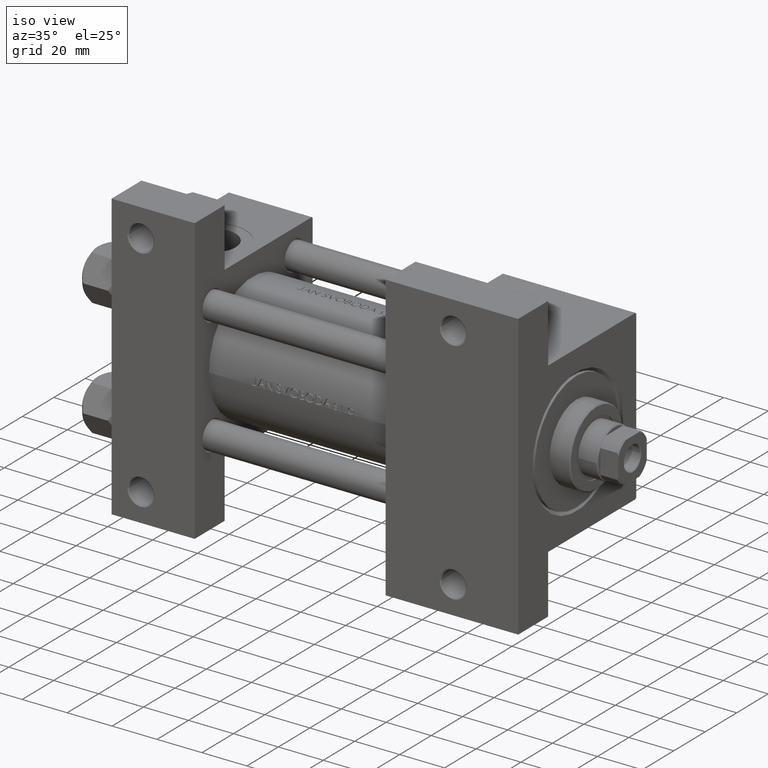
[diagram: clean part render]
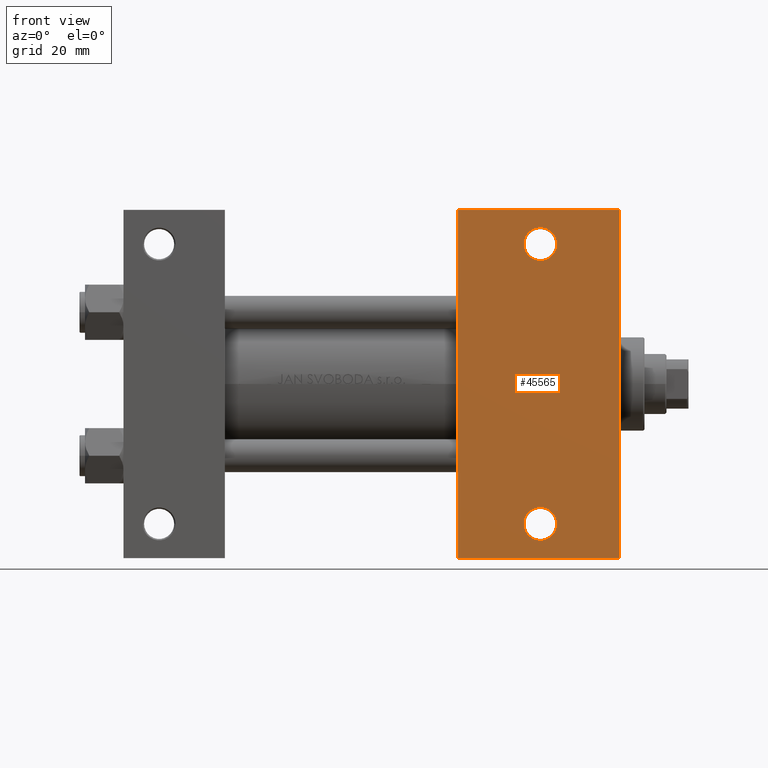
[diagram: tour spotlight — one face highlighted and labeled with its STEP entity id]
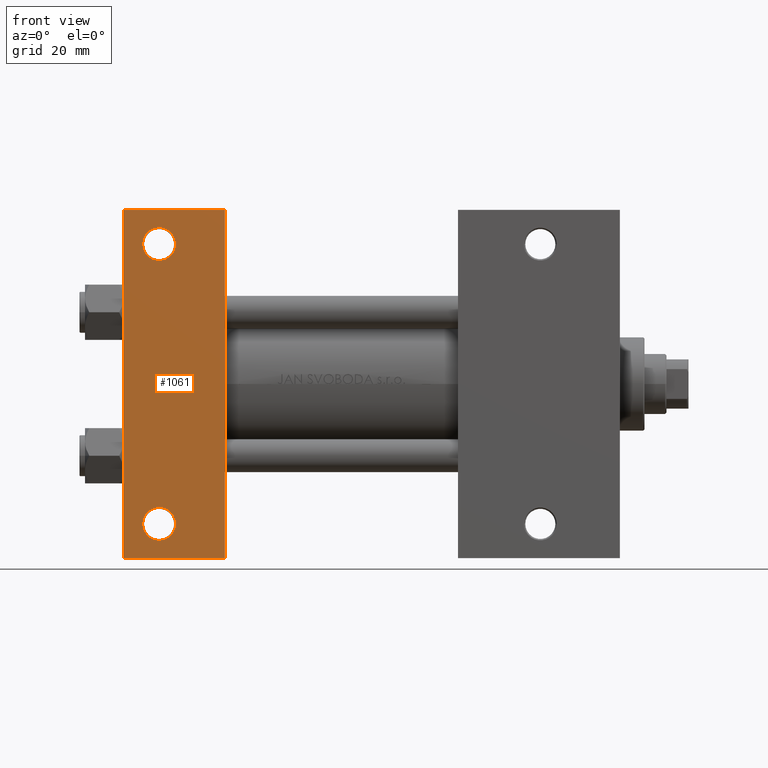
[diagram: tour spotlight — one face highlighted and labeled with its STEP entity id]
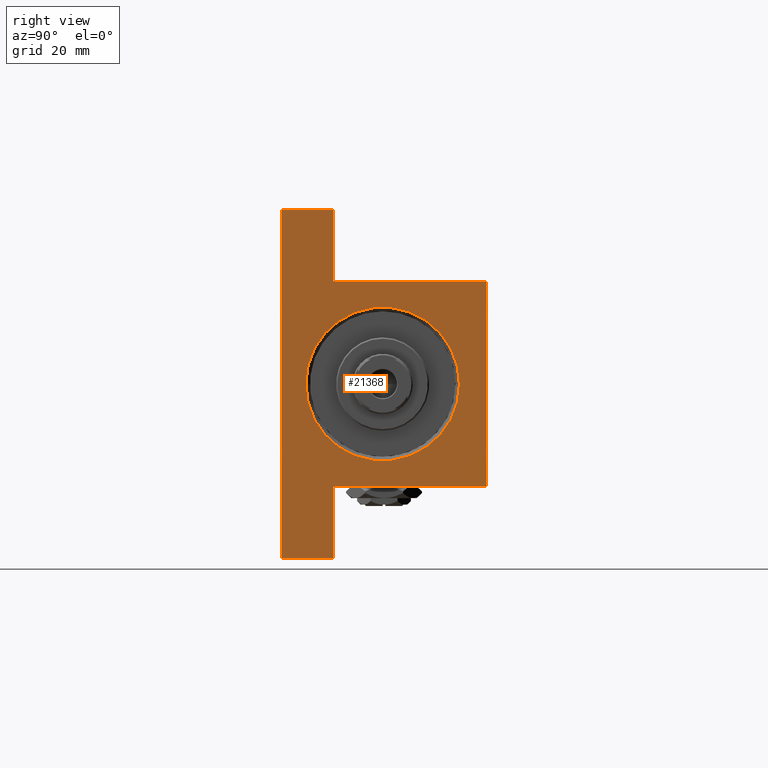
[diagram: tour spotlight — one face highlighted and labeled with its STEP entity id]
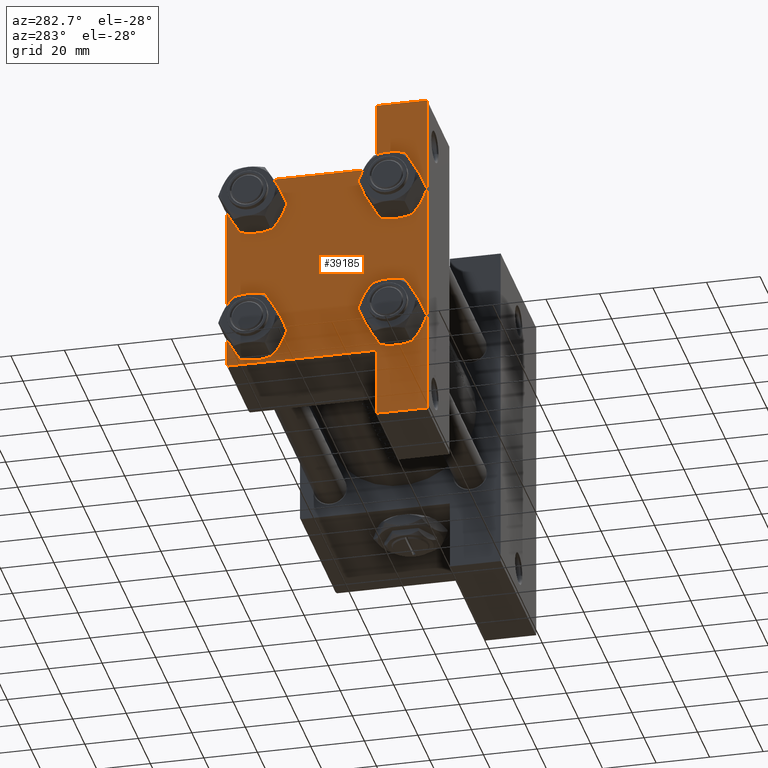
[diagram: tour spotlight — one face highlighted and labeled with its STEP entity id]
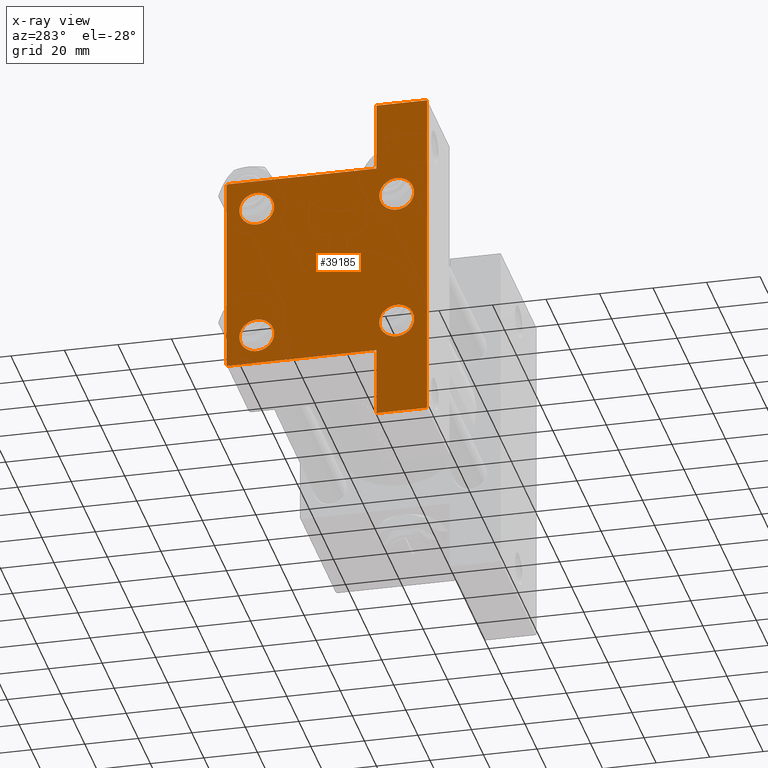
[diagram: x-ray of the same camera — body ghosted, this tour face saturated]
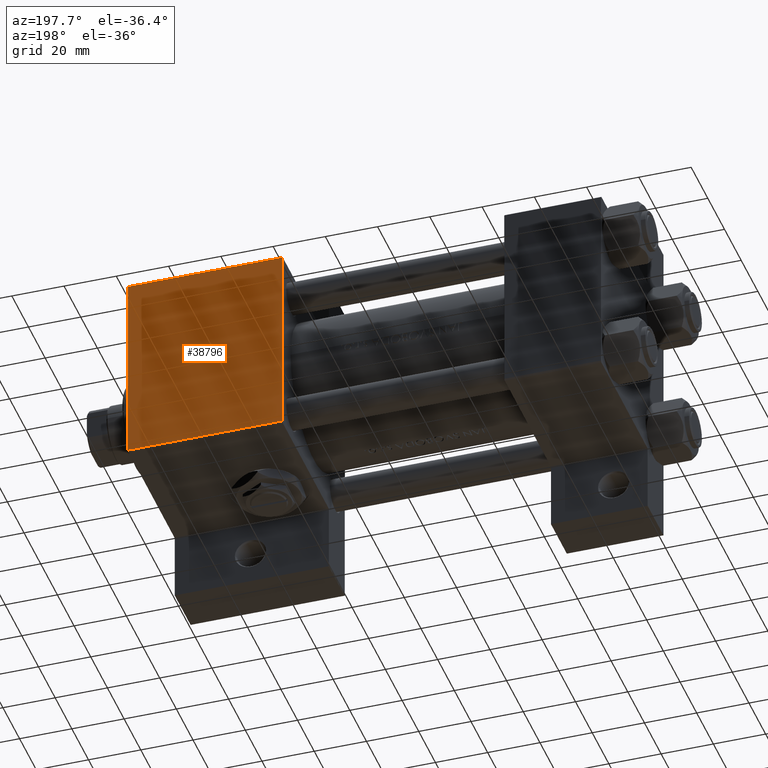
[diagram: tour spotlight — one face highlighted and labeled with its STEP entity id]
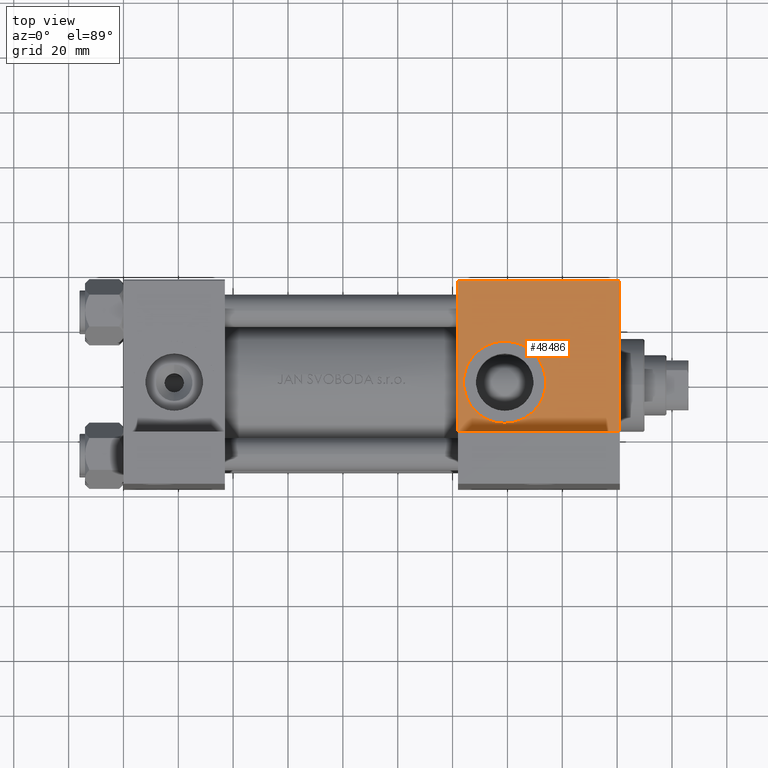
[diagram: tour spotlight — one face highlighted and labeled with its STEP entity id]
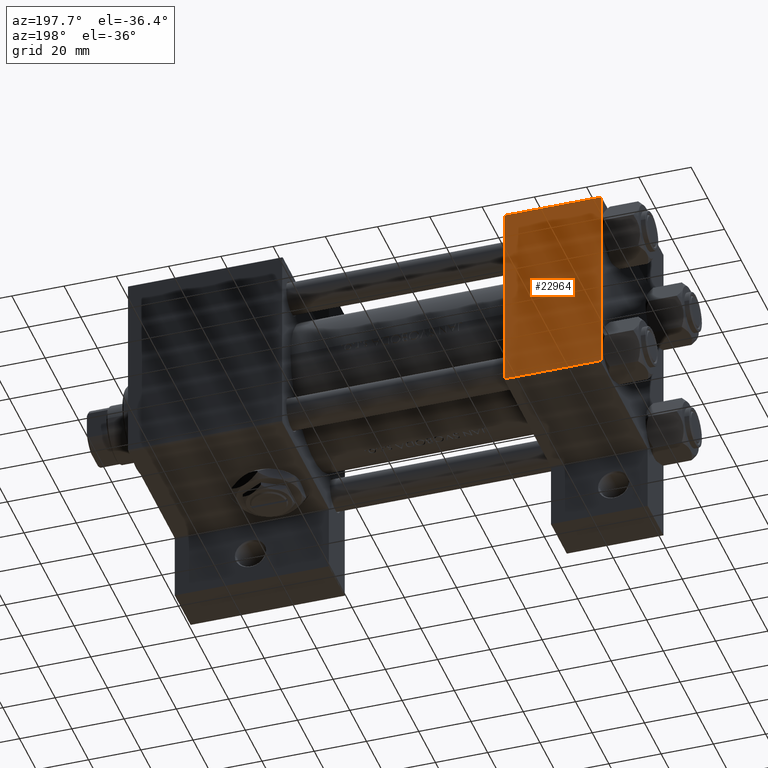
[diagram: tour spotlight — one face highlighted and labeled with its STEP entity id]
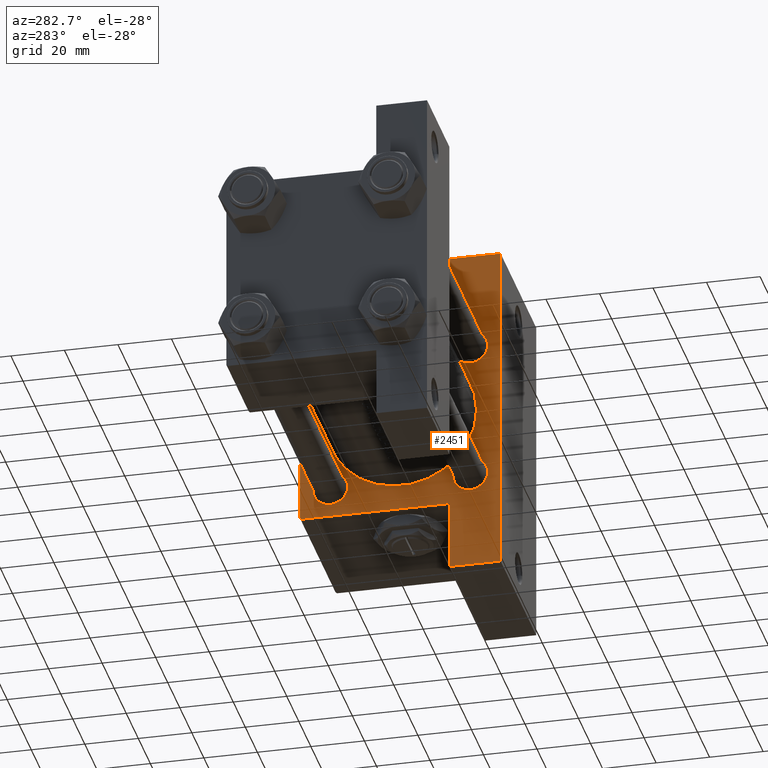
[diagram: tour spotlight — one face highlighted and labeled with its STEP entity id]
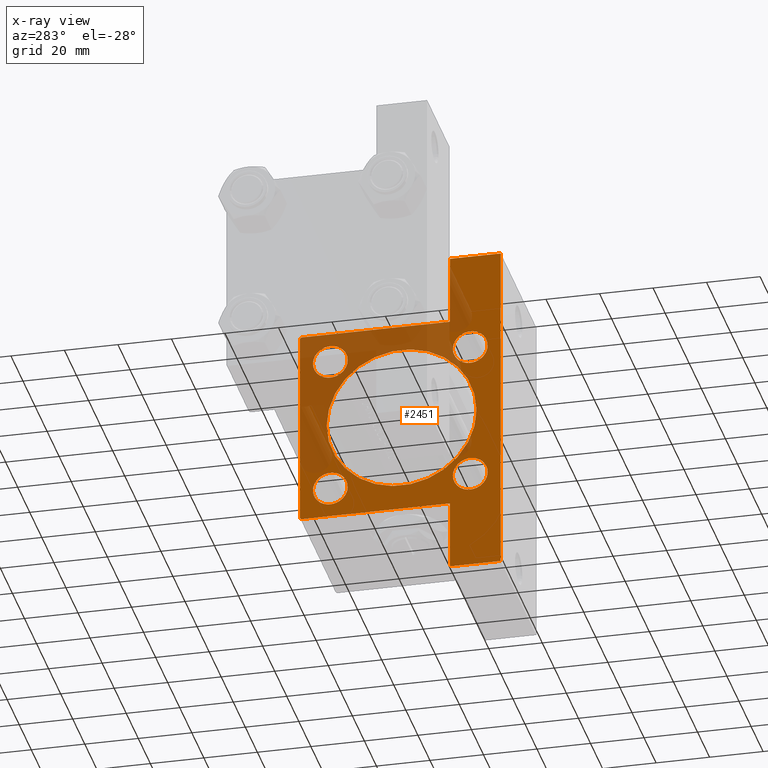
[diagram: x-ray of the same camera — body ghosted, this tour face saturated]
A machine part: a face-by-face anatomy tour. The part has 1134 B-rep faces; the first image is the clean iso view, then the 8 largest visible faces are spotlighted one at a time (largest first), each with its STEP entity span.

Face 1 — front view, entity #45565. In plain terms, the highlighted planar face has unit normal (0, -1, 0).
Definition (entity closure, byte-faithful):
#42 = DIRECTION ( 'NONE',  ( 0.000000000000000000, -1.000000000000000000, 0.000000000000000000 ) ) ;
#2164 = CIRCLE ( 'NONE', #24452, 5.999499999999962974 ) ;
#2321 = DIRECTION ( 'NONE',  ( -1.000000000000000000, 0.000000000000000000, 0.000000000000000000 ) ) ;
#2518 = PLANE ( 'NONE',  #8485 ) ;
#2529 = ORIENTED_EDGE ( 'NONE', *, *, #21332, .T. ) ;
#4121 = LINE ( 'NONE', #27039, #48163 ) ;
#4363 = AXIS2_PLACEMENT_3D ( 'NONE', #17512, #16541, #47663 ) ;
#4381 = LINE ( 'NONE', #8113, #30702 ) ;
#5072 = EDGE_CURVE ( 'NONE', #46432, #44827, #15274, .T. ) ;
#5545 = EDGE_LOOP ( 'NONE', ( #10792, #38693, #12161, #2529 ) ) ;
#6118 = LINE ( 'NONE', #28034, #10720 ) ;
#6155 = EDGE_CURVE ( 'NONE', #37751, #39664, #11248, .T. ) ;
#6988 = AXIS2_PLACEMENT_3D ( 'NONE', #17127, #44277, #28591 ) ;
#7239 = ORIENTED_EDGE ( 'NONE', *, *, #47732, .T. ) ;
#7710 = VERTEX_POINT ( 'NONE', #23547 ) ;
#8113 = CARTESIAN_POINT ( 'NONE',  ( 121.9999999999999858, -63.50000000000000000, -37.50000000000000000 ) ) ;
#8485 = AXIS2_PLACEMENT_3D ( 'NONE', #39873, #44125, #48338 ) ;
#9377 = CIRCLE ( 'NONE', #6988, 5.999499999999962974 ) ;
#9696 = EDGE_LOOP ( 'NONE', ( #39678, #41417 ) ) ;
#10720 = VECTOR ( 'NONE', #43972, 1000.000000000000000 ) ;
#10792 = ORIENTED_EDGE ( 'NONE', *, *, #6155, .F. ) ;
#11248 = LINE ( 'NONE', #26443, #45428 ) ;
#12042 = VERTEX_POINT ( 'NONE', #43646 ) ;
#12161 = ORIENTED_EDGE ( 'NONE', *, *, #20347, .T. ) ;
#13113 = CIRCLE ( 'NONE', #4363, 5.999499999999962974 ) ;
#13241 = FACE_BOUND ( 'NONE', #43857, .T. ) ;
#15100 = EDGE_CURVE ( 'NONE', #44827, #46432, #13113, .T. ) ;
#15274 = CIRCLE ( 'NONE', #16105, 5.999499999999962974 ) ;
#16105 = AXIS2_PLACEMENT_3D ( 'NONE', #17504, #32935, #2321 ) ;
#16541 = DIRECTION ( 'NONE',  ( -0.000000000000000000, -0.000000000000000000, 1.000000000000000000 ) ) ;
#17127 = CARTESIAN_POINT ( 'NONE',  ( 152.0000000000000284, 51.00000000000000000, -37.50000000000000000 ) ) ;
#17504 = CARTESIAN_POINT ( 'NONE',  ( 152.0000000000000284, -50.99999999999999289, -37.50000000000000000 ) ) ;
#17512 = CARTESIAN_POINT ( 'NONE',  ( 152.0000000000000284, -50.99999999999999289, -37.50000000000000000 ) ) ;
#17827 = VERTEX_POINT ( 'NONE', #44870 ) ;
#18880 = CARTESIAN_POINT ( 'NONE',  ( 121.9999999999999858, -63.50000000000000000, -37.50000000000000000 ) ) ;
#19988 = CARTESIAN_POINT ( 'NONE',  ( 122.0000000000000000, 63.50000000000000000, -37.50000000000000000 ) ) ;
#20347 = EDGE_CURVE ( 'NONE', #7710, #17827, #4121, .T. ) ;
#21332 = EDGE_CURVE ( 'NONE', #17827, #39664, #4381, .T. ) ;
#23547 = CARTESIAN_POINT ( 'NONE',  ( 181.0000000000000284, 63.50000000000000000, -37.50000000000000000 ) ) ;
#24452 = AXIS2_PLACEMENT_3D ( 'NONE', #46886, #27208, #35662 ) ;
#26443 = CARTESIAN_POINT ( 'NONE',  ( 122.0000000000000000, 37.50000000000000000, -37.50000000000000000 ) ) ;
#27039 = CARTESIAN_POINT ( 'NONE',  ( 181.0000000000000000, 37.50000000000000000, -37.50000000000000000 ) ) ;
#27208 = DIRECTION ( 'NONE',  ( -0.000000000000000000, -0.000000000000000000, 1.000000000000000000 ) ) ;
#28034 = CARTESIAN_POINT ( 'NONE',  ( 122.0000000000000000, 63.50000000000000000, -37.50000000000000000 ) ) ;
#28591 = DIRECTION ( 'NONE',  ( -1.000000000000000000, 0.000000000000000000, 0.000000000000000000 ) ) ;
#29186 = CARTESIAN_POINT ( 'NONE',  ( 146.0005000000000734, -50.99999999999999289, -37.50000000000000000 ) ) ;
#30702 = VECTOR ( 'NONE', #46217, 1000.000000000000000 ) ;
#32935 = DIRECTION ( 'NONE',  ( -0.000000000000000000, -0.000000000000000000, 1.000000000000000000 ) ) ;
#34372 = VERTEX_POINT ( 'NONE', #39560 ) ;
#35662 = DIRECTION ( 'NONE',  ( -1.000000000000000000, 0.000000000000000000, 0.000000000000000000 ) ) ;
#36648 = EDGE_CURVE ( 'NONE', #37751, #7710, #6118, .T. ) ;
#36876 = FACE_BOUND ( 'NONE', #9696, .T. ) ;
#37751 = VERTEX_POINT ( 'NONE', #19988 ) ;
#38693 = ORIENTED_EDGE ( 'NONE', *, *, #36648, .T. ) ;
#39560 = CARTESIAN_POINT ( 'NONE',  ( 157.9994999999999834, 51.00000000000000000, -37.50000000000000000 ) ) ;
#39664 = VERTEX_POINT ( 'NONE', #18880 ) ;
#39678 = ORIENTED_EDGE ( 'NONE', *, *, #5072, .T. ) ;
#39873 = CARTESIAN_POINT ( 'NONE',  ( 181.0000000000000000, 37.50000000000000000, -37.50000000000000000 ) ) ;
#40492 = CARTESIAN_POINT ( 'NONE',  ( 157.9994999999999834, -50.99999999999999289, -37.50000000000000000 ) ) ;
#41417 = ORIENTED_EDGE ( 'NONE', *, *, #15100, .T. ) ;
#42716 = DIRECTION ( 'NONE',  ( 0.000000000000000000, -1.000000000000000000, 0.000000000000000000 ) ) ;
#43630 = FACE_OUTER_BOUND ( 'NONE', #5545, .T. ) ;
#43646 = CARTESIAN_POINT ( 'NONE',  ( 146.0005000000000734, 51.00000000000000000, -37.50000000000000000 ) ) ;
#43857 = EDGE_LOOP ( 'NONE', ( #7239, #47868 ) ) ;
#43972 = DIRECTION ( 'NONE',  ( 1.000000000000000000, 0.000000000000000000, 0.000000000000000000 ) ) ;
#44125 = DIRECTION ( 'NONE',  ( 0.000000000000000000, 0.000000000000000000, -1.000000000000000000 ) ) ;
#44277 = DIRECTION ( 'NONE',  ( -0.000000000000000000, -0.000000000000000000, 1.000000000000000000 ) ) ;
#44827 = VERTEX_POINT ( 'NONE', #40492 ) ;
#44870 = CARTESIAN_POINT ( 'NONE',  ( 181.0000000000000000, -63.50000000000002842, -37.50000000000000000 ) ) ;
#45428 = VECTOR ( 'NONE', #42, 1000.000000000000000 ) ;
#45565 = ADVANCED_FACE ( 'NONE', ( #13241, #36876, #43630 ), #2518, .T. ) ;
#46204 = EDGE_CURVE ( 'NONE', #34372, #12042, #2164, .T. ) ;
#46217 = DIRECTION ( 'NONE',  ( -1.000000000000000000, 4.704334850106594808E-16, -0.000000000000000000 ) ) ;
#46432 = VERTEX_POINT ( 'NONE', #29186 ) ;
#46886 = CARTESIAN_POINT ( 'NONE',  ( 152.0000000000000284, 51.00000000000000000, -37.50000000000000000 ) ) ;
#47663 = DIRECTION ( 'NONE',  ( -1.000000000000000000, 0.000000000000000000, 0.000000000000000000 ) ) ;
#47732 = EDGE_CURVE ( 'NONE', #12042, #34372, #9377, .T. ) ;
#47868 = ORIENTED_EDGE ( 'NONE', *, *, #46204, .T. ) ;
#48163 = VECTOR ( 'NONE', #42716, 1000.000000000000000 ) ;
#48338 = DIRECTION ( 'NONE',  ( -1.000000000000000000, 0.000000000000000000, -0.000000000000000000 ) ) ;

Face 2 — front view, entity #1061. In plain terms, the highlighted planar face has unit normal (0, -1, -0).
Definition (entity closure, byte-faithful):
#249 = LINE ( 'NONE', #7721, #26146 ) ;
#1061 = ADVANCED_FACE ( 'NONE', ( #5369, #48661, #3323 ), #25031, .T. ) ;
#1145 = DIRECTION ( 'NONE',  ( -0.000000000000000000, -9.251858538542972814E-17, 1.000000000000000000 ) ) ;
#2806 = EDGE_LOOP ( 'NONE', ( #8129, #23617 ) ) ;
#3323 = FACE_OUTER_BOUND ( 'NONE', #20186, .T. ) ;
#4226 = EDGE_CURVE ( 'NONE', #20685, #21947, #6302, .T. ) ;
#4582 = ORIENTED_EDGE ( 'NONE', *, *, #27433, .T. ) ;
#5215 = VECTOR ( 'NONE', #15823, 1000.000000000000000 ) ;
#5369 = FACE_BOUND ( 'NONE', #44102, .T. ) ;
#6302 = LINE ( 'NONE', #10510, #7344 ) ;
#7096 = CARTESIAN_POINT ( 'NONE',  ( 37.00000000000000000, -63.50000000000000000, -37.49999999999999289 ) ) ;
#7344 = VECTOR ( 'NONE', #14254, 1000.000000000000000 ) ;
#7721 = CARTESIAN_POINT ( 'NONE',  ( 1.595073532467135441E-14, 63.50000000000000000, -37.50000000000002132 ) ) ;
#7844 = VERTEX_POINT ( 'NONE', #44455 ) ;
#8129 = ORIENTED_EDGE ( 'NONE', *, *, #8254, .T. ) ;
#8254 = EDGE_CURVE ( 'NONE', #36358, #43266, #16060, .T. ) ;
#8591 = CIRCLE ( 'NONE', #14942, 5.999499999999962974 ) ;
#9839 = DIRECTION ( 'NONE',  ( 0.000000000000000000, 9.251858538542972814E-17, -1.000000000000000000 ) ) ;
#10510 = CARTESIAN_POINT ( 'NONE',  ( 37.00000000000000000, 37.49999999999999289, -37.50000000000000000 ) ) ;
#13812 = DIRECTION ( 'NONE',  ( 0.000000000000000000, 1.000000000000000000, 9.251858538542972814E-17 ) ) ;
#14254 = DIRECTION ( 'NONE',  ( 0.000000000000000000, -1.000000000000000000, -9.251858538542972814E-17 ) ) ;
#14942 = AXIS2_PLACEMENT_3D ( 'NONE', #19332, #1145, #30551 ) ;
#15261 = CARTESIAN_POINT ( 'NONE',  ( 37.00000000000001421, 63.50000000000000000, -37.50000000000002132 ) ) ;
#15823 = DIRECTION ( 'NONE',  ( -1.000000000000000000, -0.000000000000000000, -0.000000000000000000 ) ) ;
#16060 = CIRCLE ( 'NONE', #40732, 5.999499999999962974 ) ;
#16315 = LINE ( 'NONE', #31253, #5215 ) ;
#16888 = DIRECTION ( 'NONE',  ( 0.000000000000000000, 1.000000000000000000, 0.000000000000000000 ) ) ;
#17335 = AXIS2_PLACEMENT_3D ( 'NONE', #47946, #35746, #21047 ) ;
#18686 = DIRECTION ( 'NONE',  ( 1.000000000000000000, 0.000000000000000000, 0.000000000000000000 ) ) ;
#19332 = CARTESIAN_POINT ( 'NONE',  ( 12.99999999999999822, 50.99999999999999289, -37.50000000000000000 ) ) ;
#20186 = EDGE_LOOP ( 'NONE', ( #22308, #4582, #46001, #25893 ) ) ;
#20381 = EDGE_CURVE ( 'NONE', #21947, #42428, #16315, .T. ) ;
#20570 = LINE ( 'NONE', #35763, #21954 ) ;
#20616 = CARTESIAN_POINT ( 'NONE',  ( 12.99999999999999822, -51.00000000000000711, -37.50000000000000711 ) ) ;
#20624 = CARTESIAN_POINT ( 'NONE',  ( 7.000500000000034362, -51.00000000000000711, -37.50000000000000711 ) ) ;
#20685 = VERTEX_POINT ( 'NONE', #15261 ) ;
#21047 = DIRECTION ( 'NONE',  ( 0.000000000000000000, 1.000000000000000000, 0.000000000000000000 ) ) ;
#21221 = VERTEX_POINT ( 'NONE', #41987 ) ;
#21947 = VERTEX_POINT ( 'NONE', #7096 ) ;
#21954 = VECTOR ( 'NONE', #32024, 1000.000000000000000 ) ;
#22308 = ORIENTED_EDGE ( 'NONE', *, *, #43186, .F. ) ;
#22762 = CIRCLE ( 'NONE', #46630, 5.999499999999962974 ) ;
#23617 = ORIENTED_EDGE ( 'NONE', *, *, #43768, .T. ) ;
#25031 = PLANE ( 'NONE',  #47793 ) ;
#25821 = VERTEX_POINT ( 'NONE', #37583 ) ;
#25893 = ORIENTED_EDGE ( 'NONE', *, *, #20381, .T. ) ;
#26146 = VECTOR ( 'NONE', #18686, 1000.000000000000000 ) ;
#27433 = EDGE_CURVE ( 'NONE', #7844, #20685, #249, .T. ) ;
#27921 = CARTESIAN_POINT ( 'NONE',  ( 3.977209754999747208E-16, -63.50000000000000000, -37.49999999999999289 ) ) ;
#28114 = DIRECTION ( 'NONE',  ( 0.000000000000000000, 1.000000000000000000, 0.000000000000000000 ) ) ;
#30551 = DIRECTION ( 'NONE',  ( 0.000000000000000000, 1.000000000000000000, 0.000000000000000000 ) ) ;
#31253 = CARTESIAN_POINT ( 'NONE',  ( 3.977209754999747208E-16, -63.50000000000000000, -37.49999999999999289 ) ) ;
#31841 = CARTESIAN_POINT ( 'NONE',  ( 12.99999999999999822, -51.00000000000000711, -37.50000000000000711 ) ) ;
#32024 = DIRECTION ( 'NONE',  ( 0.000000000000000000, -1.000000000000000000, -9.251858538542972814E-17 ) ) ;
#35746 = DIRECTION ( 'NONE',  ( -0.000000000000000000, -9.251858538542972814E-17, 1.000000000000000000 ) ) ;
#35763 = CARTESIAN_POINT ( 'NONE',  ( 0.000000000000000000, 37.49999999999999289, -37.50000000000000000 ) ) ;
#36296 = DIRECTION ( 'NONE',  ( -0.000000000000000000, -9.251858538542972814E-17, 1.000000000000000000 ) ) ;
#36358 = VERTEX_POINT ( 'NONE', #20624 ) ;
#37583 = CARTESIAN_POINT ( 'NONE',  ( 18.99949999999996209, 50.99999999999999289, -37.50000000000000000 ) ) ;
#38319 = ORIENTED_EDGE ( 'NONE', *, *, #48855, .T. ) ;
#38807 = CIRCLE ( 'NONE', #17335, 5.999499999999962974 ) ;
#40732 = AXIS2_PLACEMENT_3D ( 'NONE', #20616, #36296, #16888 ) ;
#41987 = CARTESIAN_POINT ( 'NONE',  ( 7.000500000000034362, 50.99999999999999289, -37.50000000000000000 ) ) ;
#42428 = VERTEX_POINT ( 'NONE', #27921 ) ;
#43186 = EDGE_CURVE ( 'NONE', #7844, #42428, #20570, .T. ) ;
#43266 = VERTEX_POINT ( 'NONE', #44156 ) ;
#43768 = EDGE_CURVE ( 'NONE', #43266, #36358, #22762, .T. ) ;
#44102 = EDGE_LOOP ( 'NONE', ( #38319, #48136 ) ) ;
#44156 = CARTESIAN_POINT ( 'NONE',  ( 18.99949999999996209, -51.00000000000000711, -37.50000000000000711 ) ) ;
#44213 = CARTESIAN_POINT ( 'NONE',  ( 37.00000000000000000, 37.49999999999999289, -37.50000000000000000 ) ) ;
#44455 = CARTESIAN_POINT ( 'NONE',  ( 1.595073532467135441E-14, 63.50000000000000000, -37.50000000000002132 ) ) ;
#46001 = ORIENTED_EDGE ( 'NONE', *, *, #4226, .T. ) ;
#46630 = AXIS2_PLACEMENT_3D ( 'NONE', #31841, #47042, #28114 ) ;
#47042 = DIRECTION ( 'NONE',  ( -0.000000000000000000, -9.251858538542972814E-17, 1.000000000000000000 ) ) ;
#47793 = AXIS2_PLACEMENT_3D ( 'NONE', #44213, #9839, #13812 ) ;
#47946 = CARTESIAN_POINT ( 'NONE',  ( 12.99999999999999822, 50.99999999999999289, -37.50000000000000000 ) ) ;
#48136 = ORIENTED_EDGE ( 'NONE', *, *, #49034, .T. ) ;
#48661 = FACE_BOUND ( 'NONE', #2806, .T. ) ;
#48855 = EDGE_CURVE ( 'NONE', #21221, #25821, #38807, .T. ) ;
#49034 = EDGE_CURVE ( 'NONE', #25821, #21221, #8591, .T. ) ;

Face 3 — right view, entity #21368. In plain terms, the highlighted planar face has unit normal (-1, 0, 0).
Definition (entity closure, byte-faithful):
#195 = EDGE_LOOP ( 'NONE', ( #3272, #42464 ) ) ;
#760 = VERTEX_POINT ( 'NONE', #13940 ) ;
#1300 = CARTESIAN_POINT ( 'NONE',  ( 181.0000000000000000, -63.50000000000002842, -18.50000000000000000 ) ) ;
#1309 = ORIENTED_EDGE ( 'NONE', *, *, #12626, .T. ) ;
#1860 = CARTESIAN_POINT ( 'NONE',  ( 181.0000000000000000, 37.49999999999999289, -18.50000000000000000 ) ) ;
#3035 = CARTESIAN_POINT ( 'NONE',  ( 181.0000000000000000, 3.429011037612592037E-15, 27.50000000000002487 ) ) ;
#3150 = EDGE_CURVE ( 'NONE', #17531, #43463, #41715, .T. ) ;
#3272 = ORIENTED_EDGE ( 'NONE', *, *, #48356, .T. ) ;
#3567 = EDGE_CURVE ( 'NONE', #9604, #13032, #4297, .T. ) ;
#3877 = CARTESIAN_POINT ( 'NONE',  ( 181.0000000000000000, 0.000000000000000000, -28.50000000000002487 ) ) ;
#3993 = VERTEX_POINT ( 'NONE', #3877 ) ;
#4121 = LINE ( 'NONE', #27039, #48163 ) ;
#4141 = LINE ( 'NONE', #42488, #24523 ) ;
#4297 = LINE ( 'NONE', #1300, #25597 ) ;
#5037 = DIRECTION ( 'NONE',  ( -0.000000000000000000, -1.000000000000000000, -0.000000000000000000 ) ) ;
#5439 = ORIENTED_EDGE ( 'NONE', *, *, #26938, .T. ) ;
#6243 = ORIENTED_EDGE ( 'NONE', *, *, #15177, .F. ) ;
#6573 = AXIS2_PLACEMENT_3D ( 'NONE', #28167, #23928, #32139 ) ;
#7710 = VERTEX_POINT ( 'NONE', #23547 ) ;
#8181 = LINE ( 'NONE', #42543, #47247 ) ;
#8208 = VECTOR ( 'NONE', #11704, 1000.000000000000000 ) ;
#8433 = DIRECTION ( 'NONE',  ( 0.000000000000000000, 0.000000000000000000, 1.000000000000000000 ) ) ;
#8611 = FACE_OUTER_BOUND ( 'NONE', #33630, .T. ) ;
#9137 = EDGE_CURVE ( 'NONE', #40827, #3993, #10544, .T. ) ;
#9515 = CARTESIAN_POINT ( 'NONE',  ( 181.0000000000000284, 63.50000000000000000, -18.50000000000000000 ) ) ;
#9604 = VERTEX_POINT ( 'NONE', #28484 ) ;
#10151 = EDGE_CURVE ( 'NONE', #24365, #7710, #41834, .T. ) ;
#10544 = CIRCLE ( 'NONE', #6573, 28.00000000000002487 ) ;
#11704 = DIRECTION ( 'NONE',  ( 0.000000000000000000, 0.000000000000000000, -1.000000000000000000 ) ) ;
#11858 = DIRECTION ( 'NONE',  ( -1.000000000000000000, -0.000000000000000000, 0.000000000000000000 ) ) ;
#12093 = CARTESIAN_POINT ( 'NONE',  ( 181.0000000000000000, 0.000000000000000000, 0.000000000000000000 ) ) ;
#12204 = ORIENTED_EDGE ( 'NONE', *, *, #43706, .T. ) ;
#12626 = EDGE_CURVE ( 'NONE', #13032, #17827, #8181, .T. ) ;
#13032 = VERTEX_POINT ( 'NONE', #20492 ) ;
#13221 = CARTESIAN_POINT ( 'NONE',  ( 181.0000000000000000, -37.50000000000000000, 37.49999999999997868 ) ) ;
#13940 = CARTESIAN_POINT ( 'NONE',  ( 181.0000000000000000, -36.99999999999997158, 37.49999999999997868 ) ) ;
#15177 = EDGE_CURVE ( 'NONE', #17531, #32965, #36437, .T. ) ;
#15763 = CIRCLE ( 'NONE', #38011, 28.00000000000002487 ) ;
#16155 = DIRECTION ( 'NONE',  ( -1.000000000000000000, -0.000000000000000000, 0.000000000000000000 ) ) ;
#17150 = DIRECTION ( 'NONE',  ( 0.000000000000000000, -1.000000000000000000, -1.850371707708594316E-16 ) ) ;
#17531 = VERTEX_POINT ( 'NONE', #42659 ) ;
#17827 = VERTEX_POINT ( 'NONE', #44870 ) ;
#18324 = CARTESIAN_POINT ( 'NONE',  ( 181.0000000000000000, 37.00000000000002842, 37.49999999999999289 ) ) ;
#20347 = EDGE_CURVE ( 'NONE', #7710, #17827, #4121, .T. ) ;
#20492 = CARTESIAN_POINT ( 'NONE',  ( 181.0000000000000000, -63.50000000000002842, -18.50000000000000000 ) ) ;
#21177 = VECTOR ( 'NONE', #17150, 1000.000000000000000 ) ;
#21368 = ADVANCED_FACE ( 'NONE', ( #27537, #8611 ), #39225, .F. ) ;
#21428 = DIRECTION ( 'NONE',  ( 0.000000000000000000, -9.251858538542972814E-17, -1.000000000000000000 ) ) ;
#23065 = DIRECTION ( 'NONE',  ( -0.000000000000000000, -0.7071067811865672237, -0.7071067811865279218 ) ) ;
#23547 = CARTESIAN_POINT ( 'NONE',  ( 181.0000000000000284, 63.50000000000000000, -37.50000000000000000 ) ) ;
#23928 = DIRECTION ( 'NONE',  ( -1.000000000000000000, -0.000000000000000000, 0.000000000000000000 ) ) ;
#24242 = VECTOR ( 'NONE', #35941, 1000.000000000000000 ) ;
#24365 = VERTEX_POINT ( 'NONE', #9515 ) ;
#24523 = VECTOR ( 'NONE', #23065, 1000.000000000000000 ) ;
#24746 = CARTESIAN_POINT ( 'NONE',  ( 181.0000000000000000, 37.50000000000000000, 37.49999999999999289 ) ) ;
#24872 = LINE ( 'NONE', #32332, #21177 ) ;
#25478 = CARTESIAN_POINT ( 'NONE',  ( 181.0000000000000000, 37.00000000000002842, 37.49999999999999289 ) ) ;
#25597 = VECTOR ( 'NONE', #5037, 1000.000000000000000 ) ;
#25615 = ORIENTED_EDGE ( 'NONE', *, *, #48734, .T. ) ;
#26938 = EDGE_CURVE ( 'NONE', #24365, #32965, #38210, .T. ) ;
#27021 = DIRECTION ( 'NONE',  ( -1.067522139062650277E-15, -1.000000000000000000, 0.000000000000000000 ) ) ;
#27039 = CARTESIAN_POINT ( 'NONE',  ( 181.0000000000000000, 37.50000000000000000, -37.50000000000000000 ) ) ;
#27049 = DIRECTION ( 'NONE',  ( 0.000000000000000000, 0.000000000000000000, 1.000000000000000000 ) ) ;
#27537 = FACE_BOUND ( 'NONE', #195, .T. ) ;
#27595 = CARTESIAN_POINT ( 'NONE',  ( 181.0000000000000000, -37.50000000000000000, 36.99999999999997868 ) ) ;
#28167 = CARTESIAN_POINT ( 'NONE',  ( 181.0000000000000000, 0.000000000000000000, -0.5000000000000004441 ) ) ;
#28484 = CARTESIAN_POINT ( 'NONE',  ( 181.0000000000000000, -37.50000000000000711, -18.50000000000000355 ) ) ;
#32139 = DIRECTION ( 'NONE',  ( 0.000000000000000000, 0.000000000000000000, 1.000000000000000000 ) ) ;
#32332 = CARTESIAN_POINT ( 'NONE',  ( 181.0000000000000000, 37.50000000000000000, 37.49999999999999289 ) ) ;
#32965 = VERTEX_POINT ( 'NONE', #1860 ) ;
#33079 = AXIS2_PLACEMENT_3D ( 'NONE', #12093, #11858, #27049 ) ;
#33630 = EDGE_LOOP ( 'NONE', ( #6243, #47924, #12204, #25615, #35538, #47253, #1309, #33997, #44257, #5439 ) ) ;
#33997 = ORIENTED_EDGE ( 'NONE', *, *, #20347, .F. ) ;
#35538 = ORIENTED_EDGE ( 'NONE', *, *, #41634, .T. ) ;
#35941 = DIRECTION ( 'NONE',  ( 0.000000000000000000, 0.000000000000000000, -1.000000000000000000 ) ) ;
#36437 = LINE ( 'NONE', #24746, #24242 ) ;
#38010 = VECTOR ( 'NONE', #27021, 1000.000000000000000 ) ;
#38011 = AXIS2_PLACEMENT_3D ( 'NONE', #43292, #16155, #8433 ) ;
#38064 = DIRECTION ( 'NONE',  ( 0.000000000000000000, 0.000000000000000000, -1.000000000000000000 ) ) ;
#38210 = LINE ( 'NONE', #41455, #38010 ) ;
#39225 = PLANE ( 'NONE',  #33079 ) ;
#40191 = VECTOR ( 'NONE', #21428, 1000.000000000000000 ) ;
#40827 = VERTEX_POINT ( 'NONE', #3035 ) ;
#41455 = CARTESIAN_POINT ( 'NONE',  ( 181.0000000000000284, 63.50000000000000000, -18.50000000000000000 ) ) ;
#41634 = EDGE_CURVE ( 'NONE', #46766, #9604, #47593, .T. ) ;
#41715 = LINE ( 'NONE', #18324, #45467 ) ;
#41834 = LINE ( 'NONE', #42086, #8208 ) ;
#42086 = CARTESIAN_POINT ( 'NONE',  ( 181.0000000000000284, 63.50000000000000000, -18.50000000000000000 ) ) ;
#42464 = ORIENTED_EDGE ( 'NONE', *, *, #9137, .T. ) ;
#42488 = CARTESIAN_POINT ( 'NONE',  ( 181.0000000000000000, -37.50000000000000000, 36.99999999999997868 ) ) ;
#42543 = CARTESIAN_POINT ( 'NONE',  ( 181.0000000000000000, -63.50000000000002842, -18.50000000000000000 ) ) ;
#42659 = CARTESIAN_POINT ( 'NONE',  ( 181.0000000000000000, 37.50000000000000000, 37.00000000000002132 ) ) ;
#42716 = DIRECTION ( 'NONE',  ( 0.000000000000000000, -1.000000000000000000, 0.000000000000000000 ) ) ;
#43292 = CARTESIAN_POINT ( 'NONE',  ( 181.0000000000000000, 0.000000000000000000, -0.5000000000000004441 ) ) ;
#43463 = VERTEX_POINT ( 'NONE', #25478 ) ;
#43706 = EDGE_CURVE ( 'NONE', #43463, #760, #24872, .T. ) ;
#44257 = ORIENTED_EDGE ( 'NONE', *, *, #10151, .F. ) ;
#44870 = CARTESIAN_POINT ( 'NONE',  ( 181.0000000000000000, -63.50000000000002842, -37.50000000000000000 ) ) ;
#45467 = VECTOR ( 'NONE', #48945, 1000.000000000000114 ) ;
#46766 = VERTEX_POINT ( 'NONE', #27595 ) ;
#47247 = VECTOR ( 'NONE', #38064, 1000.000000000000000 ) ;
#47253 = ORIENTED_EDGE ( 'NONE', *, *, #3567, .T. ) ;
#47593 = LINE ( 'NONE', #13221, #40191 ) ;
#47924 = ORIENTED_EDGE ( 'NONE', *, *, #3150, .T. ) ;
#48163 = VECTOR ( 'NONE', #42716, 1000.000000000000000 ) ;
#48356 = EDGE_CURVE ( 'NONE', #3993, #40827, #15763, .T. ) ;
#48734 = EDGE_CURVE ( 'NONE', #760, #46766, #4141, .T. ) ;
#48945 = DIRECTION ( 'NONE',  ( 0.000000000000000000, -0.7071067811865474617, 0.7071067811865474617 ) ) ;

Face 4 — auxiliary view, entity #39185. An x-ray twin of the same camera follows (body ghosted, this face saturated) — the face is partly hidden behind the body. In plain terms, the highlighted planar face has unit normal (-1, 0, -0).
Definition (entity closure, byte-faithful):
#331 = EDGE_LOOP ( 'NONE', ( #24166, #30545 ) ) ;
#793 = CARTESIAN_POINT ( 'NONE',  ( 0.000000000000000000, 26.14999999999999858, 32.65000000000002700 ) ) ;
#875 = DIRECTION ( 'NONE',  ( 0.000000000000000000, 0.7071067811865474617, -0.7071067811865474617 ) ) ;
#1952 = VECTOR ( 'NONE', #37513, 1000.000000000000000 ) ;
#2130 = ORIENTED_EDGE ( 'NONE', *, *, #5816, .T. ) ;
#2200 = VECTOR ( 'NONE', #39756, 1000.000000000000000 ) ;
#3107 = VECTOR ( 'NONE', #6642, 1000.000000000000000 ) ;
#3656 = DIRECTION ( 'NONE',  ( 1.000000000000000000, -0.000000000000000000, 0.000000000000000000 ) ) ;
#3905 = DIRECTION ( 'NONE',  ( -0.000000000000000000, 0.7071067811865474617, 0.7071067811865474617 ) ) ;
#5059 = ORIENTED_EDGE ( 'NONE', *, *, #27375, .T. ) ;
#5420 = CARTESIAN_POINT ( 'NONE',  ( 0.000000000000000000, 26.14999999999999858, -19.64999999999998792 ) ) ;
#5761 = CIRCLE ( 'NONE', #16102, 6.500000000000023093 ) ;
#5816 = EDGE_CURVE ( 'NONE', #28250, #7675, #11326, .T. ) ;
#5875 = VERTEX_POINT ( 'NONE', #29822 ) ;
#6476 = AXIS2_PLACEMENT_3D ( 'NONE', #45500, #3656, #10642 ) ;
#6636 = ORIENTED_EDGE ( 'NONE', *, *, #43186, .T. ) ;
#6642 = DIRECTION ( 'NONE',  ( 0.000000000000000000, 0.000000000000000000, -1.000000000000000000 ) ) ;
#7675 = VERTEX_POINT ( 'NONE', #19567 ) ;
#7677 = ORIENTED_EDGE ( 'NONE', *, *, #21698, .T. ) ;
#7844 = VERTEX_POINT ( 'NONE', #44455 ) ;
#7936 = VERTEX_POINT ( 'NONE', #30969 ) ;
#8049 = VERTEX_POINT ( 'NONE', #25639 ) ;
#8101 = EDGE_CURVE ( 'NONE', #24830, #7844, #26363, .T. ) ;
#8901 = CARTESIAN_POINT ( 'NONE',  ( 0.000000000000000000, -37.00000000000000711, 37.49999999999999289 ) ) ;
#9726 = ORIENTED_EDGE ( 'NONE', *, *, #45379, .F. ) ;
#10634 = EDGE_CURVE ( 'NONE', #32612, #18752, #38451, .T. ) ;
#10642 = DIRECTION ( 'NONE',  ( 0.000000000000000000, 0.000000000000000000, 1.000000000000000000 ) ) ;
#10772 = VERTEX_POINT ( 'NONE', #36265 ) ;
#11287 = VECTOR ( 'NONE', #22614, 1000.000000000000000 ) ;
#11326 = CIRCLE ( 'NONE', #6476, 6.500000000000023093 ) ;
#11678 = ORIENTED_EDGE ( 'NONE', *, *, #28671, .T. ) ;
#12812 = FACE_OUTER_BOUND ( 'NONE', #45828, .T. ) ;
#13115 = LINE ( 'NONE', #39258, #2200 ) ;
#13736 = EDGE_CURVE ( 'NONE', #39206, #42428, #14367, .T. ) ;
#13960 = LINE ( 'NONE', #17943, #31413 ) ;
#14367 = LINE ( 'NONE', #44529, #1952 ) ;
#15064 = DIRECTION ( 'NONE',  ( 0.000000000000000000, 0.000000000000000000, 1.000000000000000000 ) ) ;
#15280 = CARTESIAN_POINT ( 'NONE',  ( 0.000000000000000000, 36.99999999999999289, 37.50000000000000000 ) ) ;
#15666 = VECTOR ( 'NONE', #47113, 1000.000000000000000 ) ;
#15798 = CIRCLE ( 'NONE', #38876, 6.500000000000015987 ) ;
#16102 = AXIS2_PLACEMENT_3D ( 'NONE', #33508, #48710, #22792 ) ;
#16439 = EDGE_LOOP ( 'NONE', ( #35321, #26248 ) ) ;
#16989 = AXIS2_PLACEMENT_3D ( 'NONE', #23087, #19602, #31057 ) ;
#16994 = ORIENTED_EDGE ( 'NONE', *, *, #32858, .T. ) ;
#17022 = VECTOR ( 'NONE', #26397, 1000.000000000000000 ) ;
#17943 = CARTESIAN_POINT ( 'NONE',  ( 1.595073532467135757E-14, 63.50000000000001421, -18.50000000000000355 ) ) ;
#17954 = EDGE_CURVE ( 'NONE', #8049, #26641, #29926, .T. ) ;
#17992 = AXIS2_PLACEMENT_3D ( 'NONE', #18952, #30902, #34136 ) ;
#18752 = VERTEX_POINT ( 'NONE', #44848 ) ;
#18851 = LINE ( 'NONE', #22821, #25170 ) ;
#18952 = CARTESIAN_POINT ( 'NONE',  ( 0.000000000000000000, 26.14999999999999858, 26.15000000000000213 ) ) ;
#19567 = CARTESIAN_POINT ( 'NONE',  ( 0.000000000000000000, -26.14999999999999147, 32.65000000000003411 ) ) ;
#19602 = DIRECTION ( 'NONE',  ( 1.000000000000000000, -0.000000000000000000, 0.000000000000000000 ) ) ;
#20570 = LINE ( 'NONE', #35763, #21954 ) ;
#20705 = LINE ( 'NONE', #35888, #15666 ) ;
#21203 = DIRECTION ( 'NONE',  ( 1.000000000000000000, -0.000000000000000000, 0.000000000000000000 ) ) ;
#21451 = CARTESIAN_POINT ( 'NONE',  ( 0.000000000000000000, 26.14999999999999858, -26.15000000000000213 ) ) ;
#21698 = EDGE_CURVE ( 'NONE', #34009, #39685, #18851, .T. ) ;
#21954 = VECTOR ( 'NONE', #32024, 1000.000000000000000 ) ;
#22357 = EDGE_CURVE ( 'NONE', #26641, #8049, #27576, .T. ) ;
#22400 = CARTESIAN_POINT ( 'NONE',  ( 0.000000000000000000, 37.49999999999999289, 37.50000000000000000 ) ) ;
#22614 = DIRECTION ( 'NONE',  ( 0.000000000000000000, -1.734723475976806848E-16, -1.000000000000000000 ) ) ;
#22792 = DIRECTION ( 'NONE',  ( 0.000000000000000000, 0.000000000000000000, 1.000000000000000000 ) ) ;
#22799 = LINE ( 'NONE', #37989, #32057 ) ;
#22821 = CARTESIAN_POINT ( 'NONE',  ( -0.000000000000000000, -37.25000000000000000, 37.25000000000000000 ) ) ;
#23087 = CARTESIAN_POINT ( 'NONE',  ( 0.000000000000000000, 26.14999999999999858, -26.15000000000000213 ) ) ;
#23561 = EDGE_CURVE ( 'NONE', #34009, #10772, #13115, .T. ) ;
#23661 = CARTESIAN_POINT ( 'NONE',  ( 0.000000000000000000, -26.14999999999999147, 19.64999999999999147 ) ) ;
#23740 = EDGE_CURVE ( 'NONE', #48608, #7936, #46702, .T. ) ;
#24166 = ORIENTED_EDGE ( 'NONE', *, *, #23740, .T. ) ;
#24355 = EDGE_LOOP ( 'NONE', ( #33445, #5059 ) ) ;
#24830 = VERTEX_POINT ( 'NONE', #40653 ) ;
#25170 = VECTOR ( 'NONE', #3905, 1000.000000000000114 ) ;
#25351 = CARTESIAN_POINT ( 'NONE',  ( 0.000000000000000000, -26.14999999999999147, -19.64999999999999503 ) ) ;
#25368 = DIRECTION ( 'NONE',  ( 0.000000000000000000, 0.000000000000000000, 1.000000000000000000 ) ) ;
#25639 = CARTESIAN_POINT ( 'NONE',  ( 0.000000000000000000, 26.14999999999999858, 19.64999999999998437 ) ) ;
#25831 = DIRECTION ( 'NONE',  ( 0.000000000000000000, 0.000000000000000000, 1.000000000000000000 ) ) ;
#26248 = ORIENTED_EDGE ( 'NONE', *, *, #17954, .T. ) ;
#26292 = CARTESIAN_POINT ( 'NONE',  ( 0.000000000000000000, 37.49999999999999289, 37.00000000000000000 ) ) ;
#26363 = LINE ( 'NONE', #37086, #11287 ) ;
#26397 = DIRECTION ( 'NONE',  ( 0.000000000000000000, -1.000000000000000000, -9.251858538542971581E-17 ) ) ;
#26641 = VERTEX_POINT ( 'NONE', #793 ) ;
#27270 = FACE_BOUND ( 'NONE', #35166, .T. ) ;
#27375 = EDGE_CURVE ( 'NONE', #18752, #32612, #15798, .T. ) ;
#27576 = CIRCLE ( 'NONE', #38703, 6.500000000000023093 ) ;
#27921 = CARTESIAN_POINT ( 'NONE',  ( 3.977209754999747208E-16, -63.50000000000000000, -37.49999999999999289 ) ) ;
#28250 = VERTEX_POINT ( 'NONE', #23661 ) ;
#28262 = DIRECTION ( 'NONE',  ( -0.000000000000000000, 0.000000000000000000, 1.000000000000000000 ) ) ;
#28671 = EDGE_CURVE ( 'NONE', #31546, #5875, #44509, .T. ) ;
#29337 = DIRECTION ( 'NONE',  ( 1.000000000000000000, -0.000000000000000000, 0.000000000000000000 ) ) ;
#29401 = DIRECTION ( 'NONE',  ( -2.877097866686192789E-16, -1.000000000000000000, 0.000000000000000000 ) ) ;
#29822 = CARTESIAN_POINT ( 'NONE',  ( 0.000000000000000000, 37.49999999999999289, -18.49999999999999645 ) ) ;
#29926 = CIRCLE ( 'NONE', #17992, 6.500000000000023093 ) ;
#30545 = ORIENTED_EDGE ( 'NONE', *, *, #42023, .T. ) ;
#30735 = EDGE_CURVE ( 'NONE', #7675, #28250, #5761, .T. ) ;
#30902 = DIRECTION ( 'NONE',  ( 1.000000000000000000, -0.000000000000000000, 0.000000000000000000 ) ) ;
#30969 = CARTESIAN_POINT ( 'NONE',  ( 0.000000000000000000, -26.14999999999999147, -32.65000000000002700 ) ) ;
#31008 = PLANE ( 'NONE',  #33741 ) ;
#31057 = DIRECTION ( 'NONE',  ( 0.000000000000000000, 0.000000000000000000, 1.000000000000000000 ) ) ;
#31310 = ORIENTED_EDGE ( 'NONE', *, *, #37533, .F. ) ;
#31413 = VECTOR ( 'NONE', #29401, 1000.000000000000000 ) ;
#31492 = FACE_BOUND ( 'NONE', #24355, .T. ) ;
#31546 = VERTEX_POINT ( 'NONE', #26292 ) ;
#32024 = DIRECTION ( 'NONE',  ( 0.000000000000000000, -1.000000000000000000, -9.251858538542972814E-17 ) ) ;
#32057 = VECTOR ( 'NONE', #875, 1000.000000000000114 ) ;
#32612 = VERTEX_POINT ( 'NONE', #5420 ) ;
#32858 = EDGE_CURVE ( 'NONE', #41307, #31546, #22799, .T. ) ;
#33445 = ORIENTED_EDGE ( 'NONE', *, *, #10634, .T. ) ;
#33508 = CARTESIAN_POINT ( 'NONE',  ( 0.000000000000000000, -26.14999999999999147, 26.15000000000000924 ) ) ;
#33741 = AXIS2_PLACEMENT_3D ( 'NONE', #42955, #43202, #28262 ) ;
#33926 = ORIENTED_EDGE ( 'NONE', *, *, #13736, .F. ) ;
#34009 = VERTEX_POINT ( 'NONE', #36168 ) ;
#34136 = DIRECTION ( 'NONE',  ( 0.000000000000000000, 0.000000000000000000, 1.000000000000000000 ) ) ;
#34599 = CIRCLE ( 'NONE', #44190, 6.500000000000015987 ) ;
#35166 = EDGE_LOOP ( 'NONE', ( #48884, #2130 ) ) ;
#35321 = ORIENTED_EDGE ( 'NONE', *, *, #22357, .T. ) ;
#35650 = ORIENTED_EDGE ( 'NONE', *, *, #38325, .F. ) ;
#35763 = CARTESIAN_POINT ( 'NONE',  ( 0.000000000000000000, 37.49999999999999289, -37.50000000000000000 ) ) ;
#35888 = CARTESIAN_POINT ( 'NONE',  ( 3.977209754999744250E-16, -63.49999999999998579, -18.50000000000000355 ) ) ;
#36168 = CARTESIAN_POINT ( 'NONE',  ( 0.000000000000000000, -37.50000000000000711, 36.99999999999999289 ) ) ;
#36265 = CARTESIAN_POINT ( 'NONE',  ( -7.145701223179004046E-16, -37.50000000000000711, -18.50000000000000355 ) ) ;
#36388 = DIRECTION ( 'NONE',  ( 0.000000000000000000, 0.000000000000000000, 1.000000000000000000 ) ) ;
#37086 = CARTESIAN_POINT ( 'NONE',  ( 1.595073532467135441E-14, 63.50000000000001421, 26.72167621838005047 ) ) ;
#37513 = DIRECTION ( 'NONE',  ( 0.000000000000000000, -1.734723475976806848E-16, -1.000000000000000000 ) ) ;
#37533 = EDGE_CURVE ( 'NONE', #24830, #5875, #13960, .T. ) ;
#37989 = CARTESIAN_POINT ( 'NONE',  ( 0.000000000000000000, 37.24999999999999289, 37.24999999999999289 ) ) ;
#38325 = EDGE_CURVE ( 'NONE', #41307, #39685, #45337, .T. ) ;
#38451 = CIRCLE ( 'NONE', #16989, 6.500000000000015987 ) ;
#38703 = AXIS2_PLACEMENT_3D ( 'NONE', #48023, #48271, #25368 ) ;
#38725 = FACE_BOUND ( 'NONE', #331, .T. ) ;
#38876 = AXIS2_PLACEMENT_3D ( 'NONE', #21451, #21203, #36388 ) ;
#39185 = ADVANCED_FACE ( 'NONE', ( #27270, #38725, #31492, #46694, #12812 ), #31008, .T. ) ;
#39206 = VERTEX_POINT ( 'NONE', #46201 ) ;
#39258 = CARTESIAN_POINT ( 'NONE',  ( 0.000000000000000000, -37.50000000000000711, 37.49999999999999289 ) ) ;
#39467 = ORIENTED_EDGE ( 'NONE', *, *, #8101, .T. ) ;
#39563 = AXIS2_PLACEMENT_3D ( 'NONE', #45451, #41221, #15064 ) ;
#39685 = VERTEX_POINT ( 'NONE', #8901 ) ;
#39756 = DIRECTION ( 'NONE',  ( 0.000000000000000000, 9.251858538542971581E-17, -1.000000000000000000 ) ) ;
#40653 = CARTESIAN_POINT ( 'NONE',  ( 1.595073532467135441E-14, 63.50000000000000000, -18.50000000000000355 ) ) ;
#40753 = CARTESIAN_POINT ( 'NONE',  ( 0.000000000000000000, 37.49999999999999289, 37.50000000000000000 ) ) ;
#41221 = DIRECTION ( 'NONE',  ( 1.000000000000000000, -0.000000000000000000, 0.000000000000000000 ) ) ;
#41307 = VERTEX_POINT ( 'NONE', #15280 ) ;
#42023 = EDGE_CURVE ( 'NONE', #7936, #48608, #34599, .T. ) ;
#42428 = VERTEX_POINT ( 'NONE', #27921 ) ;
#42955 = CARTESIAN_POINT ( 'NONE',  ( 0.000000000000000000, 0.000000000000000000, 0.000000000000000000 ) ) ;
#43186 = EDGE_CURVE ( 'NONE', #7844, #42428, #20570, .T. ) ;
#43202 = DIRECTION ( 'NONE',  ( -1.000000000000000000, 0.000000000000000000, -0.000000000000000000 ) ) ;
#44190 = AXIS2_PLACEMENT_3D ( 'NONE', #48014, #29337, #25831 ) ;
#44455 = CARTESIAN_POINT ( 'NONE',  ( 1.595073532467135441E-14, 63.50000000000000000, -37.50000000000002132 ) ) ;
#44509 = LINE ( 'NONE', #40753, #3107 ) ;
#44529 = CARTESIAN_POINT ( 'NONE',  ( 3.977209754999747208E-16, -63.49999999999998579, 26.72167621838007889 ) ) ;
#44848 = CARTESIAN_POINT ( 'NONE',  ( 0.000000000000000000, 26.14999999999999858, -32.65000000000001990 ) ) ;
#45195 = ORIENTED_EDGE ( 'NONE', *, *, #23561, .F. ) ;
#45337 = LINE ( 'NONE', #22400, #17022 ) ;
#45379 = EDGE_CURVE ( 'NONE', #10772, #39206, #20705, .T. ) ;
#45451 = CARTESIAN_POINT ( 'NONE',  ( 0.000000000000000000, -26.14999999999999147, -26.15000000000000924 ) ) ;
#45500 = CARTESIAN_POINT ( 'NONE',  ( 0.000000000000000000, -26.14999999999999147, 26.15000000000000924 ) ) ;
#45828 = EDGE_LOOP ( 'NONE', ( #45195, #7677, #35650, #16994, #11678, #31310, #39467, #6636, #33926, #9726 ) ) ;
#46201 = CARTESIAN_POINT ( 'NONE',  ( 3.977209754999747208E-16, -63.50000000000000000, -18.50000000000000355 ) ) ;
#46694 = FACE_BOUND ( 'NONE', #16439, .T. ) ;
#46702 = CIRCLE ( 'NONE', #39563, 6.500000000000015987 ) ;
#47113 = DIRECTION ( 'NONE',  ( 4.278042683914906889E-17, -1.000000000000000000, 0.000000000000000000 ) ) ;
#48014 = CARTESIAN_POINT ( 'NONE',  ( 0.000000000000000000, -26.14999999999999147, -26.15000000000000924 ) ) ;
#48023 = CARTESIAN_POINT ( 'NONE',  ( 0.000000000000000000, 26.14999999999999858, 26.15000000000000213 ) ) ;
#48271 = DIRECTION ( 'NONE',  ( 1.000000000000000000, -0.000000000000000000, 0.000000000000000000 ) ) ;
#48608 = VERTEX_POINT ( 'NONE', #25351 ) ;
#48710 = DIRECTION ( 'NONE',  ( 1.000000000000000000, -0.000000000000000000, 0.000000000000000000 ) ) ;
#48884 = ORIENTED_EDGE ( 'NONE', *, *, #30735, .T. ) ;

Face 5 — auxiliary view, entity #38796. In plain terms, the highlighted planar face has unit normal (0, -1, -0).
Definition (entity closure, byte-faithful):
#760 = VERTEX_POINT ( 'NONE', #13940 ) ;
#1087 = EDGE_CURVE ( 'NONE', #36522, #760, #40943, .T. ) ;
#3957 = VERTEX_POINT ( 'NONE', #43334 ) ;
#8173 = ORIENTED_EDGE ( 'NONE', *, *, #40555, .T. ) ;
#8732 = DIRECTION ( 'NONE',  ( -1.000000000000000000, 0.000000000000000000, 0.000000000000000000 ) ) ;
#11972 = LINE ( 'NONE', #30901, #36990 ) ;
#12453 = EDGE_LOOP ( 'NONE', ( #36156, #8173, #16461, #19697 ) ) ;
#13940 = CARTESIAN_POINT ( 'NONE',  ( 181.0000000000000000, -36.99999999999997158, 37.49999999999997868 ) ) ;
#14536 = DIRECTION ( 'NONE',  ( 1.000000000000000000, 0.000000000000000000, 0.000000000000000000 ) ) ;
#16461 = ORIENTED_EDGE ( 'NONE', *, *, #17423, .T. ) ;
#17150 = DIRECTION ( 'NONE',  ( 0.000000000000000000, -1.000000000000000000, -1.850371707708594316E-16 ) ) ;
#17423 = EDGE_CURVE ( 'NONE', #3957, #36522, #29314, .T. ) ;
#19697 = ORIENTED_EDGE ( 'NONE', *, *, #1087, .T. ) ;
#20358 = VECTOR ( 'NONE', #28820, 1000.000000000000000 ) ;
#21177 = VECTOR ( 'NONE', #17150, 1000.000000000000000 ) ;
#24872 = LINE ( 'NONE', #32332, #21177 ) ;
#25478 = CARTESIAN_POINT ( 'NONE',  ( 181.0000000000000000, 37.00000000000002842, 37.49999999999999289 ) ) ;
#25516 = CARTESIAN_POINT ( 'NONE',  ( 181.0000000000000000, -36.99999999999997158, 37.49999999999997868 ) ) ;
#28324 = PLANE ( 'NONE',  #40086 ) ;
#28698 = VECTOR ( 'NONE', #14536, 1000.000000000000000 ) ;
#28820 = DIRECTION ( 'NONE',  ( 0.000000000000000000, -1.000000000000000000, -1.850371707708594316E-16 ) ) ;
#29314 = LINE ( 'NONE', #36285, #20358 ) ;
#30901 = CARTESIAN_POINT ( 'NONE',  ( 122.0000000000000000, 37.00000000000002842, 37.49999999999999289 ) ) ;
#32332 = CARTESIAN_POINT ( 'NONE',  ( 181.0000000000000000, 37.50000000000000000, 37.49999999999999289 ) ) ;
#36156 = ORIENTED_EDGE ( 'NONE', *, *, #43706, .F. ) ;
#36285 = CARTESIAN_POINT ( 'NONE',  ( 122.0000000000000000, 37.50000000000000000, 37.49999999999999289 ) ) ;
#36522 = VERTEX_POINT ( 'NONE', #41747 ) ;
#36990 = VECTOR ( 'NONE', #8732, 1000.000000000000000 ) ;
#38796 = ADVANCED_FACE ( 'NONE', ( #46020 ), #28324, .F. ) ;
#39025 = CARTESIAN_POINT ( 'NONE',  ( 181.0000000000000000, 37.50000000000000000, 37.49999999999999289 ) ) ;
#40086 = AXIS2_PLACEMENT_3D ( 'NONE', #39025, #43011, #43514 ) ;
#40555 = EDGE_CURVE ( 'NONE', #43463, #3957, #11972, .T. ) ;
#40943 = LINE ( 'NONE', #25516, #28698 ) ;
#41747 = CARTESIAN_POINT ( 'NONE',  ( 122.0000000000000000, -36.99999999999997158, 37.49999999999997868 ) ) ;
#43011 = DIRECTION ( 'NONE',  ( 0.000000000000000000, 1.850371707708594316E-16, -1.000000000000000000 ) ) ;
#43334 = CARTESIAN_POINT ( 'NONE',  ( 122.0000000000000000, 37.00000000000002842, 37.49999999999999289 ) ) ;
#43463 = VERTEX_POINT ( 'NONE', #25478 ) ;
#43514 = DIRECTION ( 'NONE',  ( 0.000000000000000000, 1.000000000000000000, 1.850371707708594316E-16 ) ) ;
#43706 = EDGE_CURVE ( 'NONE', #43463, #760, #24872, .T. ) ;
#46020 = FACE_OUTER_BOUND ( 'NONE', #12453, .T. ) ;

Face 6 — top view, entity #48486. In plain terms, the highlighted planar face has unit normal (0, -0, -1).
Definition (entity closure, byte-faithful):
#2873 = AXIS2_PLACEMENT_3D ( 'NONE', #9476, #5492, #40084 ) ;
#3852 = LINE ( 'NONE', #23270, #30780 ) ;
#4824 = EDGE_CURVE ( 'NONE', #34385, #38992, #28799, .T. ) ;
#5405 = ORIENTED_EDGE ( 'NONE', *, *, #4824, .F. ) ;
#5492 = DIRECTION ( 'NONE',  ( 0.000000000000000000, -1.000000000000000000, -8.673617379884036705E-17 ) ) ;
#7062 = CARTESIAN_POINT ( 'NONE',  ( 181.0000000000000000, -37.50000000000000000, 36.99999999999997868 ) ) ;
#9476 = CARTESIAN_POINT ( 'NONE',  ( 139.0000000000000000, -37.50000000000000000, 3.469446951953615767E-15 ) ) ;
#9604 = VERTEX_POINT ( 'NONE', #28484 ) ;
#13221 = CARTESIAN_POINT ( 'NONE',  ( 181.0000000000000000, -37.50000000000000000, 37.49999999999997868 ) ) ;
#13887 = FACE_BOUND ( 'NONE', #37622, .T. ) ;
#13896 = VERTEX_POINT ( 'NONE', #19830 ) ;
#14577 = DIRECTION ( 'NONE',  ( 0.000000000000000000, -9.251858538542972814E-17, -1.000000000000000000 ) ) ;
#16031 = DIRECTION ( 'NONE',  ( 0.000000000000000000, 0.000000000000000000, -1.000000000000000000 ) ) ;
#17400 = EDGE_LOOP ( 'NONE', ( #48195, #39644, #36013, #23680 ) ) ;
#18110 = EDGE_CURVE ( 'NONE', #38992, #34385, #47429, .T. ) ;
#18475 = VECTOR ( 'NONE', #33686, 1000.000000000000000 ) ;
#19830 = CARTESIAN_POINT ( 'NONE',  ( 122.0000000000000000, -37.50000000000000000, -18.50000000000000000 ) ) ;
#20040 = VECTOR ( 'NONE', #14577, 1000.000000000000000 ) ;
#20864 = DIRECTION ( 'NONE',  ( 0.000000000000000000, 9.251858538542972814E-17, 1.000000000000000000 ) ) ;
#21428 = DIRECTION ( 'NONE',  ( 0.000000000000000000, -9.251858538542972814E-17, -1.000000000000000000 ) ) ;
#22055 = CARTESIAN_POINT ( 'NONE',  ( 122.0000000000000000, -37.50000000000000000, 37.49999999999997868 ) ) ;
#23270 = CARTESIAN_POINT ( 'NONE',  ( 122.0000000000000000, -37.50000000000000000, -18.50000000000000000 ) ) ;
#23680 = ORIENTED_EDGE ( 'NONE', *, *, #44986, .T. ) ;
#27213 = ORIENTED_EDGE ( 'NONE', *, *, #18110, .F. ) ;
#27243 = CARTESIAN_POINT ( 'NONE',  ( 139.0000000000000000, -37.50000000000000000, 3.469446951953615767E-15 ) ) ;
#27257 = DIRECTION ( 'NONE',  ( 1.000000000000000000, -3.528251137579946599E-16, 0.000000000000000000 ) ) ;
#27595 = CARTESIAN_POINT ( 'NONE',  ( 181.0000000000000000, -37.50000000000000000, 36.99999999999997868 ) ) ;
#28484 = CARTESIAN_POINT ( 'NONE',  ( 181.0000000000000000, -37.50000000000000711, -18.50000000000000355 ) ) ;
#28799 = CIRCLE ( 'NONE', #35963, 15.00000000000002487 ) ;
#29087 = DIRECTION ( 'NONE',  ( 0.000000000000000000, 1.000000000000000000, -9.251858538542972814E-17 ) ) ;
#29499 = CARTESIAN_POINT ( 'NONE',  ( 122.0000000000000000, -37.50000000000000000, 36.99999999999997868 ) ) ;
#29843 = EDGE_CURVE ( 'NONE', #35781, #13896, #40740, .T. ) ;
#30780 = VECTOR ( 'NONE', #27257, 1000.000000000000000 ) ;
#31005 = EDGE_CURVE ( 'NONE', #46766, #35781, #44679, .T. ) ;
#32073 = PLANE ( 'NONE',  #44407 ) ;
#32322 = CARTESIAN_POINT ( 'NONE',  ( 139.0000000000000000, -37.50000000000000000, 15.00000000000002842 ) ) ;
#33686 = DIRECTION ( 'NONE',  ( -1.000000000000000000, 0.000000000000000000, 0.000000000000000000 ) ) ;
#34385 = VERTEX_POINT ( 'NONE', #32322 ) ;
#35781 = VERTEX_POINT ( 'NONE', #29499 ) ;
#35963 = AXIS2_PLACEMENT_3D ( 'NONE', #27243, #45431, #16031 ) ;
#36013 = ORIENTED_EDGE ( 'NONE', *, *, #29843, .T. ) ;
#37622 = EDGE_LOOP ( 'NONE', ( #27213, #5405 ) ) ;
#37726 = CARTESIAN_POINT ( 'NONE',  ( 139.0000000000000000, -37.50000000000000000, -15.00000000000002132 ) ) ;
#38992 = VERTEX_POINT ( 'NONE', #37726 ) ;
#39557 = FACE_OUTER_BOUND ( 'NONE', #17400, .T. ) ;
#39644 = ORIENTED_EDGE ( 'NONE', *, *, #31005, .T. ) ;
#40084 = DIRECTION ( 'NONE',  ( 0.000000000000000000, 0.000000000000000000, -1.000000000000000000 ) ) ;
#40191 = VECTOR ( 'NONE', #21428, 1000.000000000000000 ) ;
#40740 = LINE ( 'NONE', #22055, #20040 ) ;
#41634 = EDGE_CURVE ( 'NONE', #46766, #9604, #47593, .T. ) ;
#43793 = CARTESIAN_POINT ( 'NONE',  ( 181.0000000000000000, -37.50000000000000000, 37.49999999999997868 ) ) ;
#44407 = AXIS2_PLACEMENT_3D ( 'NONE', #43793, #29087, #20864 ) ;
#44679 = LINE ( 'NONE', #7062, #18475 ) ;
#44986 = EDGE_CURVE ( 'NONE', #13896, #9604, #3852, .T. ) ;
#45431 = DIRECTION ( 'NONE',  ( 0.000000000000000000, -1.000000000000000000, -8.673617379884036705E-17 ) ) ;
#46766 = VERTEX_POINT ( 'NONE', #27595 ) ;
#47429 = CIRCLE ( 'NONE', #2873, 15.00000000000002487 ) ;
#47593 = LINE ( 'NONE', #13221, #40191 ) ;
#48195 = ORIENTED_EDGE ( 'NONE', *, *, #41634, .F. ) ;
#48486 = ADVANCED_FACE ( 'NONE', ( #13887, #39557 ), #32073, .F. ) ;

Face 7 — auxiliary view, entity #22964. In plain terms, the highlighted planar face has unit normal (0, -1, -0).
Definition (entity closure, byte-faithful):
#2382 = DIRECTION ( 'NONE',  ( 0.000000000000000000, -1.000000000000000000, -9.251858538542971581E-17 ) ) ;
#3647 = CARTESIAN_POINT ( 'NONE',  ( 37.00000000000000000, -37.00000000000000711, 37.49999999999999289 ) ) ;
#5579 = LINE ( 'NONE', #32215, #26789 ) ;
#8901 = CARTESIAN_POINT ( 'NONE',  ( 0.000000000000000000, -37.00000000000000711, 37.49999999999999289 ) ) ;
#8954 = VECTOR ( 'NONE', #20013, 1000.000000000000000 ) ;
#9597 = EDGE_CURVE ( 'NONE', #39685, #36493, #31467, .T. ) ;
#10824 = ORIENTED_EDGE ( 'NONE', *, *, #42313, .F. ) ;
#11685 = AXIS2_PLACEMENT_3D ( 'NONE', #27254, #35707, #31231 ) ;
#15280 = CARTESIAN_POINT ( 'NONE',  ( 0.000000000000000000, 36.99999999999999289, 37.50000000000000000 ) ) ;
#15949 = ORIENTED_EDGE ( 'NONE', *, *, #38325, .T. ) ;
#17022 = VECTOR ( 'NONE', #26397, 1000.000000000000000 ) ;
#17129 = VECTOR ( 'NONE', #2382, 1000.000000000000000 ) ;
#20013 = DIRECTION ( 'NONE',  ( 1.000000000000000000, 0.000000000000000000, 0.000000000000000000 ) ) ;
#22400 = CARTESIAN_POINT ( 'NONE',  ( 0.000000000000000000, 37.49999999999999289, 37.50000000000000000 ) ) ;
#22950 = CARTESIAN_POINT ( 'NONE',  ( 37.00000000000000000, 37.49999999999999289, 37.50000000000000000 ) ) ;
#22964 = ADVANCED_FACE ( 'NONE', ( #30994 ), #24257, .F. ) ;
#23113 = EDGE_CURVE ( 'NONE', #28631, #41307, #5579, .T. ) ;
#24257 = PLANE ( 'NONE',  #11685 ) ;
#24597 = CARTESIAN_POINT ( 'NONE',  ( 37.00000000000000000, 36.99999999999999289, 37.50000000000000000 ) ) ;
#26397 = DIRECTION ( 'NONE',  ( 0.000000000000000000, -1.000000000000000000, -9.251858538542971581E-17 ) ) ;
#26789 = VECTOR ( 'NONE', #47905, 1000.000000000000000 ) ;
#27254 = CARTESIAN_POINT ( 'NONE',  ( 37.00000000000000000, 37.49999999999999289, 37.50000000000000000 ) ) ;
#28631 = VERTEX_POINT ( 'NONE', #24597 ) ;
#30994 = FACE_OUTER_BOUND ( 'NONE', #46990, .T. ) ;
#31231 = DIRECTION ( 'NONE',  ( 0.000000000000000000, 1.000000000000000000, 9.251858538542971581E-17 ) ) ;
#31467 = LINE ( 'NONE', #47660, #8954 ) ;
#32215 = CARTESIAN_POINT ( 'NONE',  ( 0.000000000000000000, 36.99999999999999289, 37.50000000000000000 ) ) ;
#32964 = ORIENTED_EDGE ( 'NONE', *, *, #23113, .T. ) ;
#33248 = LINE ( 'NONE', #22950, #17129 ) ;
#35707 = DIRECTION ( 'NONE',  ( 0.000000000000000000, 9.251858538542971581E-17, -1.000000000000000000 ) ) ;
#36392 = ORIENTED_EDGE ( 'NONE', *, *, #9597, .T. ) ;
#36493 = VERTEX_POINT ( 'NONE', #3647 ) ;
#38325 = EDGE_CURVE ( 'NONE', #41307, #39685, #45337, .T. ) ;
#39685 = VERTEX_POINT ( 'NONE', #8901 ) ;
#41307 = VERTEX_POINT ( 'NONE', #15280 ) ;
#42313 = EDGE_CURVE ( 'NONE', #28631, #36493, #33248, .T. ) ;
#45337 = LINE ( 'NONE', #22400, #17022 ) ;
#46990 = EDGE_LOOP ( 'NONE', ( #15949, #36392, #10824, #32964 ) ) ;
#47660 = CARTESIAN_POINT ( 'NONE',  ( 37.00000000000000000, -37.00000000000000711, 37.49999999999999289 ) ) ;
#47905 = DIRECTION ( 'NONE',  ( -1.000000000000000000, 0.000000000000000000, 0.000000000000000000 ) ) ;

Face 8 — auxiliary view, entity #2451. An x-ray twin of the same camera follows (body ghosted, this face saturated) — the face is partly hidden behind the body. In plain terms, the highlighted planar face has unit normal (-1, 0, 0).
Definition (entity closure, byte-faithful):
#42 = DIRECTION ( 'NONE',  ( 0.000000000000000000, -1.000000000000000000, 0.000000000000000000 ) ) ;
#302 = VERTEX_POINT ( 'NONE', #39955 ) ;
#591 = DIRECTION ( 'NONE',  ( 0.000000000000000000, 0.000000000000000000, 1.000000000000000000 ) ) ;
#847 = EDGE_CURVE ( 'NONE', #35372, #21008, #34128, .T. ) ;
#1546 = EDGE_CURVE ( 'NONE', #21602, #26925, #22309, .T. ) ;
#1925 = EDGE_LOOP ( 'NONE', ( #19981, #3707 ) ) ;
#2451 = ADVANCED_FACE ( 'NONE', ( #31731, #12807, #24264, #42206, #39459, #15563 ), #42454, .T. ) ;
#2494 = AXIS2_PLACEMENT_3D ( 'NONE', #31240, #23276, #23528 ) ;
#3205 = CARTESIAN_POINT ( 'NONE',  ( 122.0000000000000000, -26.14999999999999147, 26.15000000000000924 ) ) ;
#3707 = ORIENTED_EDGE ( 'NONE', *, *, #847, .T. ) ;
#3867 = DIRECTION ( 'NONE',  ( 0.000000000000000000, 0.000000000000000000, -1.000000000000000000 ) ) ;
#3957 = VERTEX_POINT ( 'NONE', #43334 ) ;
#4963 = CARTESIAN_POINT ( 'NONE',  ( 122.0000000000000000, -26.14999999999999147, -26.15000000000000924 ) ) ;
#4985 = CARTESIAN_POINT ( 'NONE',  ( 122.0000000000000000, 63.50000000000000000, -18.50000000000000000 ) ) ;
#5254 = CIRCLE ( 'NONE', #27509, 6.500000000000008882 ) ;
#5669 = LINE ( 'NONE', #17616, #25272 ) ;
#5914 = ORIENTED_EDGE ( 'NONE', *, *, #6155, .T. ) ;
#5944 = CARTESIAN_POINT ( 'NONE',  ( 121.9999999999999858, -63.50000000000000000, -18.50000000000000000 ) ) ;
#6155 = EDGE_CURVE ( 'NONE', #37751, #39664, #11248, .T. ) ;
#6367 = CARTESIAN_POINT ( 'NONE',  ( 122.0000000000000000, -26.14999999999999147, -26.15000000000000924 ) ) ;
#6400 = ORIENTED_EDGE ( 'NONE', *, *, #21971, .T. ) ;
#6638 = EDGE_CURVE ( 'NONE', #19410, #32313, #42823, .T. ) ;
#6749 = CARTESIAN_POINT ( 'NONE',  ( 122.0000000000000000, -37.24999999999894129, 37.25000000000100897 ) ) ;
#7220 = DIRECTION ( 'NONE',  ( -0.000000000000000000, 0.7071067811865672237, 0.7071067811865279218 ) ) ;
#7354 = LINE ( 'NONE', #44977, #14594 ) ;
#7824 = CARTESIAN_POINT ( 'NONE',  ( 122.0000000000000000, 26.14999999999999858, -19.64999999999999503 ) ) ;
#9669 = VECTOR ( 'NONE', #24134, 1000.000000000000000 ) ;
#10367 = CARTESIAN_POINT ( 'NONE',  ( 122.0000000000000000, 37.50000000000000000, -18.50000000000000355 ) ) ;
#10965 = LINE ( 'NONE', #6749, #47463 ) ;
#11248 = LINE ( 'NONE', #26443, #45428 ) ;
#11322 = AXIS2_PLACEMENT_3D ( 'NONE', #18217, #11664, #21704 ) ;
#11632 = EDGE_CURVE ( 'NONE', #32313, #37751, #7354, .T. ) ;
#11664 = DIRECTION ( 'NONE',  ( 1.000000000000000000, 0.000000000000000000, 0.000000000000000000 ) ) ;
#11838 = EDGE_CURVE ( 'NONE', #13555, #13896, #41167, .T. ) ;
#12807 = FACE_BOUND ( 'NONE', #23804, .T. ) ;
#12975 = EDGE_CURVE ( 'NONE', #22045, #302, #31382, .T. ) ;
#13012 = CARTESIAN_POINT ( 'NONE',  ( 122.0000000000000000, 37.50000000000000000, 37.49999999999999289 ) ) ;
#13411 = ORIENTED_EDGE ( 'NONE', *, *, #14197, .T. ) ;
#13555 = VERTEX_POINT ( 'NONE', #15412 ) ;
#13896 = VERTEX_POINT ( 'NONE', #19830 ) ;
#13907 = VERTEX_POINT ( 'NONE', #23565 ) ;
#14197 = EDGE_CURVE ( 'NONE', #13907, #31629, #40936, .T. ) ;
#14577 = DIRECTION ( 'NONE',  ( 0.000000000000000000, -9.251858538542972814E-17, -1.000000000000000000 ) ) ;
#14594 = VECTOR ( 'NONE', #3867, 1000.000000000000000 ) ;
#14831 = AXIS2_PLACEMENT_3D ( 'NONE', #37702, #19035, #30249 ) ;
#15412 = CARTESIAN_POINT ( 'NONE',  ( 121.9999999999999858, -63.50000000000000000, -18.50000000000000000 ) ) ;
#15563 = FACE_OUTER_BOUND ( 'NONE', #48643, .T. ) ;
#15872 = CARTESIAN_POINT ( 'NONE',  ( 122.0000000000000000, 3.429011037612589276E-15, -28.50000000000000000 ) ) ;
#16147 = CARTESIAN_POINT ( 'NONE',  ( 122.0000000000000000, -26.14999999999999147, 19.65000000000000213 ) ) ;
#16257 = CARTESIAN_POINT ( 'NONE',  ( 122.0000000000000000, -26.14999999999999147, 26.15000000000000924 ) ) ;
#16911 = CARTESIAN_POINT ( 'NONE',  ( 122.0000000000000000, 63.50000000000000000, -18.50000000000000000 ) ) ;
#17423 = EDGE_CURVE ( 'NONE', #3957, #36522, #29314, .T. ) ;
#17616 = CARTESIAN_POINT ( 'NONE',  ( 122.0000000000000000, 37.25000000000000711, 37.25000000000000711 ) ) ;
#18170 = ORIENTED_EDGE ( 'NONE', *, *, #23196, .T. ) ;
#18217 = CARTESIAN_POINT ( 'NONE',  ( 122.0000000000000000, 0.000000000000000000, -0.5000000000000004441 ) ) ;
#18767 = EDGE_CURVE ( 'NONE', #35781, #36522, #10965, .T. ) ;
#18880 = CARTESIAN_POINT ( 'NONE',  ( 121.9999999999999858, -63.50000000000000000, -37.50000000000000000 ) ) ;
#19035 = DIRECTION ( 'NONE',  ( 1.000000000000000000, 0.000000000000000000, 0.000000000000000000 ) ) ;
#19377 = ORIENTED_EDGE ( 'NONE', *, *, #11838, .T. ) ;
#19410 = VERTEX_POINT ( 'NONE', #10367 ) ;
#19830 = CARTESIAN_POINT ( 'NONE',  ( 122.0000000000000000, -37.50000000000000000, -18.50000000000000000 ) ) ;
#19981 = ORIENTED_EDGE ( 'NONE', *, *, #40314, .T. ) ;
#19988 = CARTESIAN_POINT ( 'NONE',  ( 122.0000000000000000, 63.50000000000000000, -37.50000000000000000 ) ) ;
#20040 = VECTOR ( 'NONE', #14577, 1000.000000000000000 ) ;
#20358 = VECTOR ( 'NONE', #28820, 1000.000000000000000 ) ;
#20393 = CIRCLE ( 'NONE', #30746, 6.499999999999995559 ) ;
#20449 = DIRECTION ( 'NONE',  ( 1.000000000000000000, 0.000000000000000000, -0.000000000000000000 ) ) ;
#20475 = LINE ( 'NONE', #13012, #41539 ) ;
#21008 = VERTEX_POINT ( 'NONE', #45596 ) ;
#21351 = EDGE_LOOP ( 'NONE', ( #13411, #42505 ) ) ;
#21574 = EDGE_CURVE ( 'NONE', #26925, #21602, #20393, .T. ) ;
#21602 = VERTEX_POINT ( 'NONE', #40294 ) ;
#21704 = DIRECTION ( 'NONE',  ( 0.000000000000000000, 0.000000000000000000, -1.000000000000000000 ) ) ;
#21848 = AXIS2_PLACEMENT_3D ( 'NONE', #16257, #46642, #30958 ) ;
#21971 = EDGE_CURVE ( 'NONE', #46062, #31741, #33915, .T. ) ;
#22045 = VERTEX_POINT ( 'NONE', #7824 ) ;
#22055 = CARTESIAN_POINT ( 'NONE',  ( 122.0000000000000000, -37.50000000000000000, 37.49999999999997868 ) ) ;
#22134 = DIRECTION ( 'NONE',  ( 0.000000000000000000, 0.000000000000000000, 1.000000000000000000 ) ) ;
#22309 = CIRCLE ( 'NONE', #36646, 6.499999999999995559 ) ;
#22545 = CARTESIAN_POINT ( 'NONE',  ( 122.0000000000000000, -26.14999999999999147, -32.65000000000002700 ) ) ;
#23196 = EDGE_CURVE ( 'NONE', #302, #22045, #45100, .T. ) ;
#23237 = CIRCLE ( 'NONE', #11322, 28.00000000000000000 ) ;
#23276 = DIRECTION ( 'NONE',  ( -1.000000000000000000, -0.000000000000000000, 0.000000000000000000 ) ) ;
#23496 = CARTESIAN_POINT ( 'NONE',  ( 122.0000000000000000, 26.14999999999999858, -26.15000000000000213 ) ) ;
#23528 = DIRECTION ( 'NONE',  ( 0.000000000000000000, 0.000000000000000000, 1.000000000000000000 ) ) ;
#23538 = EDGE_LOOP ( 'NONE', ( #34500, #18170 ) ) ;
#23565 = CARTESIAN_POINT ( 'NONE',  ( 122.0000000000000000, -26.14999999999999147, -19.65000000000000213 ) ) ;
#23804 = EDGE_LOOP ( 'NONE', ( #27834, #41459 ) ) ;
#24134 = DIRECTION ( 'NONE',  ( -0.000000000000000000, 1.000000000000000000, -0.000000000000000000 ) ) ;
#24264 = FACE_BOUND ( 'NONE', #23538, .T. ) ;
#24866 = DIRECTION ( 'NONE',  ( 0.000000000000000000, 0.000000000000000000, 1.000000000000000000 ) ) ;
#24868 = LINE ( 'NONE', #5944, #27688 ) ;
#25231 = EDGE_CURVE ( 'NONE', #13555, #39664, #24868, .T. ) ;
#25272 = VECTOR ( 'NONE', #43535, 1000.000000000000114 ) ;
#25450 = ORIENTED_EDGE ( 'NONE', *, *, #6638, .T. ) ;
#25589 = DIRECTION ( 'NONE',  ( 1.000000000000000000, 0.000000000000000000, -0.000000000000000000 ) ) ;
#25616 = ORIENTED_EDGE ( 'NONE', *, *, #31193, .T. ) ;
#25767 = DIRECTION ( 'NONE',  ( 0.000000000000000000, 0.000000000000000000, 1.000000000000000000 ) ) ;
#26443 = CARTESIAN_POINT ( 'NONE',  ( 122.0000000000000000, 37.50000000000000000, -37.50000000000000000 ) ) ;
#26925 = VERTEX_POINT ( 'NONE', #34226 ) ;
#27509 = AXIS2_PLACEMENT_3D ( 'NONE', #4963, #38329, #30625 ) ;
#27688 = VECTOR ( 'NONE', #32814, 1000.000000000000000 ) ;
#27834 = ORIENTED_EDGE ( 'NONE', *, *, #1546, .T. ) ;
#28820 = DIRECTION ( 'NONE',  ( 0.000000000000000000, -1.000000000000000000, -1.850371707708594316E-16 ) ) ;
#29220 = CARTESIAN_POINT ( 'NONE',  ( 122.0000000000000000, 37.50000000000000000, 37.00000000000002132 ) ) ;
#29314 = LINE ( 'NONE', #36285, #20358 ) ;
#29499 = CARTESIAN_POINT ( 'NONE',  ( 122.0000000000000000, -37.50000000000000000, 36.99999999999997868 ) ) ;
#29843 = EDGE_CURVE ( 'NONE', #35781, #13896, #40740, .T. ) ;
#29988 = AXIS2_PLACEMENT_3D ( 'NONE', #48866, #45630, #41152 ) ;
#30041 = ORIENTED_EDGE ( 'NONE', *, *, #25231, .F. ) ;
#30249 = DIRECTION ( 'NONE',  ( 0.000000000000000000, 0.000000000000000000, -1.000000000000000000 ) ) ;
#30625 = DIRECTION ( 'NONE',  ( 0.000000000000000000, 0.000000000000000000, 1.000000000000000000 ) ) ;
#30746 = AXIS2_PLACEMENT_3D ( 'NONE', #40046, #25589, #24866 ) ;
#30958 = DIRECTION ( 'NONE',  ( 0.000000000000000000, 0.000000000000000000, 1.000000000000000000 ) ) ;
#31193 = EDGE_CURVE ( 'NONE', #43554, #19410, #20475, .T. ) ;
#31236 = EDGE_CURVE ( 'NONE', #31741, #46062, #23237, .T. ) ;
#31240 = CARTESIAN_POINT ( 'NONE',  ( 122.0000000000000000, 0.000000000000000000, 0.000000000000000000 ) ) ;
#31382 = CIRCLE ( 'NONE', #37689, 6.500000000000008882 ) ;
#31629 = VERTEX_POINT ( 'NONE', #22545 ) ;
#31663 = CARTESIAN_POINT ( 'NONE',  ( 122.0000000000000000, 26.14999999999999858, 26.15000000000000213 ) ) ;
#31731 = FACE_BOUND ( 'NONE', #1925, .T. ) ;
#31741 = VERTEX_POINT ( 'NONE', #32244 ) ;
#31750 = AXIS2_PLACEMENT_3D ( 'NONE', #3205, #40821, #22134 ) ;
#32244 = CARTESIAN_POINT ( 'NONE',  ( 122.0000000000000000, 0.000000000000000000, 27.50000000000000000 ) ) ;
#32313 = VERTEX_POINT ( 'NONE', #4985 ) ;
#32814 = DIRECTION ( 'NONE',  ( 0.000000000000000000, 0.000000000000000000, -1.000000000000000000 ) ) ;
#33915 = CIRCLE ( 'NONE', #14831, 28.00000000000000000 ) ;
#34128 = CIRCLE ( 'NONE', #31750, 6.500000000000008882 ) ;
#34226 = CARTESIAN_POINT ( 'NONE',  ( 122.0000000000000000, 26.14999999999999858, 19.65000000000000568 ) ) ;
#34500 = ORIENTED_EDGE ( 'NONE', *, *, #12975, .T. ) ;
#35372 = VERTEX_POINT ( 'NONE', #16147 ) ;
#35781 = VERTEX_POINT ( 'NONE', #29499 ) ;
#35803 = ORIENTED_EDGE ( 'NONE', *, *, #17423, .F. ) ;
#36285 = CARTESIAN_POINT ( 'NONE',  ( 122.0000000000000000, 37.50000000000000000, 37.49999999999999289 ) ) ;
#36522 = VERTEX_POINT ( 'NONE', #41747 ) ;
#36646 = AXIS2_PLACEMENT_3D ( 'NONE', #31663, #20449, #46866 ) ;
#37663 = DIRECTION ( 'NONE',  ( 5.337610695313252371E-16, 1.000000000000000000, 0.000000000000000000 ) ) ;
#37689 = AXIS2_PLACEMENT_3D ( 'NONE', #23496, #46908, #591 ) ;
#37702 = CARTESIAN_POINT ( 'NONE',  ( 122.0000000000000000, 0.000000000000000000, -0.5000000000000004441 ) ) ;
#37751 = VERTEX_POINT ( 'NONE', #19988 ) ;
#38208 = ORIENTED_EDGE ( 'NONE', *, *, #29843, .F. ) ;
#38244 = ORIENTED_EDGE ( 'NONE', *, *, #31236, .T. ) ;
#38329 = DIRECTION ( 'NONE',  ( 1.000000000000000000, 0.000000000000000000, -0.000000000000000000 ) ) ;
#39065 = ORIENTED_EDGE ( 'NONE', *, *, #11632, .T. ) ;
#39459 = FACE_BOUND ( 'NONE', #44817, .T. ) ;
#39662 = DIRECTION ( 'NONE',  ( 0.000000000000000000, 0.000000000000000000, -1.000000000000000000 ) ) ;
#39664 = VERTEX_POINT ( 'NONE', #18880 ) ;
#39955 = CARTESIAN_POINT ( 'NONE',  ( 122.0000000000000000, 26.14999999999999858, -32.65000000000001279 ) ) ;
#40046 = CARTESIAN_POINT ( 'NONE',  ( 122.0000000000000000, 26.14999999999999858, 26.15000000000000213 ) ) ;
#40294 = CARTESIAN_POINT ( 'NONE',  ( 122.0000000000000000, 26.14999999999999858, 32.65000000000000568 ) ) ;
#40314 = EDGE_CURVE ( 'NONE', #21008, #35372, #45745, .T. ) ;
#40740 = LINE ( 'NONE', #22055, #20040 ) ;
#40821 = DIRECTION ( 'NONE',  ( 1.000000000000000000, 0.000000000000000000, -0.000000000000000000 ) ) ;
#40936 = CIRCLE ( 'NONE', #44928, 6.500000000000008882 ) ;
#41152 = DIRECTION ( 'NONE',  ( 0.000000000000000000, 0.000000000000000000, 1.000000000000000000 ) ) ;
#41167 = LINE ( 'NONE', #44676, #42473 ) ;
#41438 = DIRECTION ( 'NONE',  ( 1.000000000000000000, 0.000000000000000000, -0.000000000000000000 ) ) ;
#41459 = ORIENTED_EDGE ( 'NONE', *, *, #21574, .T. ) ;
#41539 = VECTOR ( 'NONE', #39662, 1000.000000000000000 ) ;
#41747 = CARTESIAN_POINT ( 'NONE',  ( 122.0000000000000000, -36.99999999999997158, 37.49999999999997868 ) ) ;
#42206 = FACE_BOUND ( 'NONE', #21351, .T. ) ;
#42454 = PLANE ( 'NONE',  #2494 ) ;
#42473 = VECTOR ( 'NONE', #37663, 1000.000000000000000 ) ;
#42505 = ORIENTED_EDGE ( 'NONE', *, *, #42833, .T. ) ;
#42823 = LINE ( 'NONE', #16911, #9669 ) ;
#42833 = EDGE_CURVE ( 'NONE', #31629, #13907, #5254, .T. ) ;
#43334 = CARTESIAN_POINT ( 'NONE',  ( 122.0000000000000000, 37.00000000000002842, 37.49999999999999289 ) ) ;
#43535 = DIRECTION ( 'NONE',  ( 0.000000000000000000, 0.7071067811865474617, -0.7071067811865474617 ) ) ;
#43554 = VERTEX_POINT ( 'NONE', #29220 ) ;
#44676 = CARTESIAN_POINT ( 'NONE',  ( 121.9999999999999858, -63.50000000000000000, -18.50000000000000000 ) ) ;
#44817 = EDGE_LOOP ( 'NONE', ( #38244, #6400 ) ) ;
#44928 = AXIS2_PLACEMENT_3D ( 'NONE', #6367, #41438, #25767 ) ;
#44977 = CARTESIAN_POINT ( 'NONE',  ( 122.0000000000000000, 63.50000000000000000, -18.50000000000000000 ) ) ;
#45100 = CIRCLE ( 'NONE', #29988, 6.500000000000008882 ) ;
#45428 = VECTOR ( 'NONE', #42, 1000.000000000000000 ) ;
#45596 = CARTESIAN_POINT ( 'NONE',  ( 122.0000000000000000, -26.14999999999999147, 32.65000000000001990 ) ) ;
#45630 = DIRECTION ( 'NONE',  ( 1.000000000000000000, 0.000000000000000000, -0.000000000000000000 ) ) ;
#45745 = CIRCLE ( 'NONE', #21848, 6.500000000000008882 ) ;
#46062 = VERTEX_POINT ( 'NONE', #15872 ) ;
#46546 = ORIENTED_EDGE ( 'NONE', *, *, #47697, .T. ) ;
#46642 = DIRECTION ( 'NONE',  ( 1.000000000000000000, 0.000000000000000000, -0.000000000000000000 ) ) ;
#46866 = DIRECTION ( 'NONE',  ( 0.000000000000000000, 0.000000000000000000, 1.000000000000000000 ) ) ;
#46908 = DIRECTION ( 'NONE',  ( 1.000000000000000000, 0.000000000000000000, -0.000000000000000000 ) ) ;
#47463 = VECTOR ( 'NONE', #7220, 1000.000000000000000 ) ;
#47697 = EDGE_CURVE ( 'NONE', #3957, #43554, #5669, .T. ) ;
#48643 = EDGE_LOOP ( 'NONE', ( #35803, #46546, #25616, #25450, #39065, #5914, #30041, #19377, #38208, #48933 ) ) ;
#48866 = CARTESIAN_POINT ( 'NONE',  ( 122.0000000000000000, 26.14999999999999858, -26.15000000000000213 ) ) ;
#48933 = ORIENTED_EDGE ( 'NONE', *, *, #18767, .T. ) ;